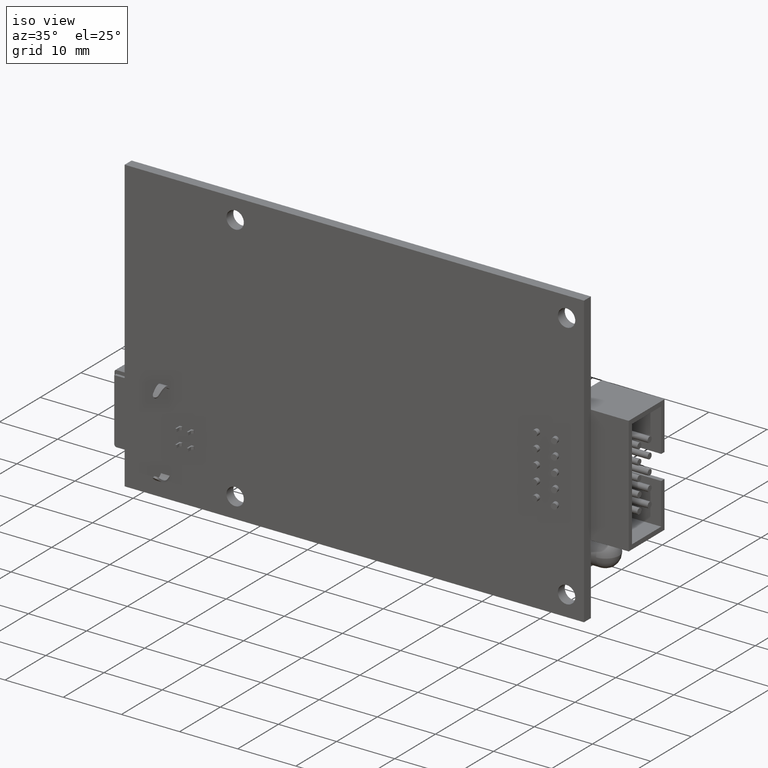
[diagram: clean part render]
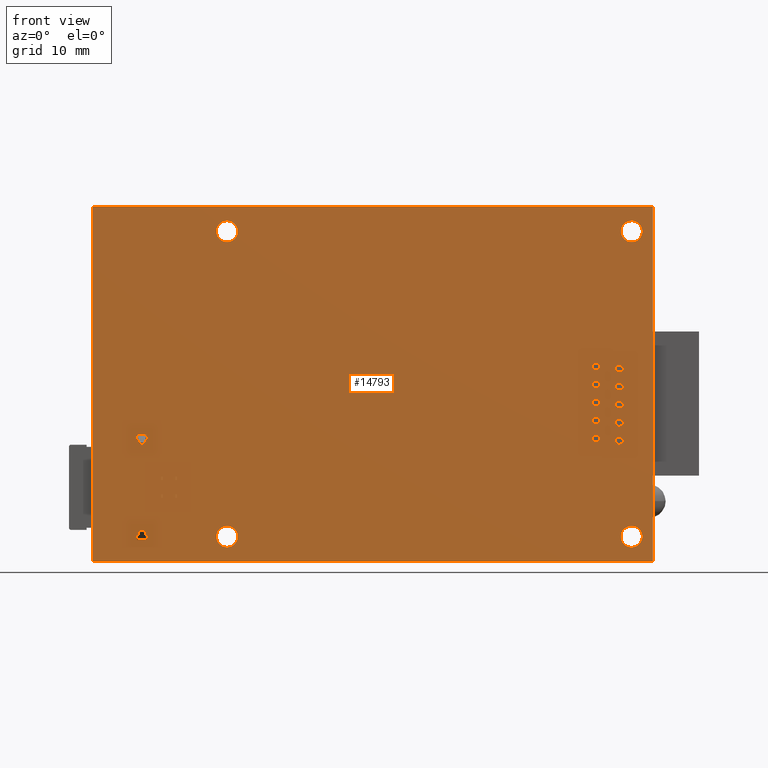
[diagram: tour spotlight — one face highlighted and labeled with its STEP entity id]
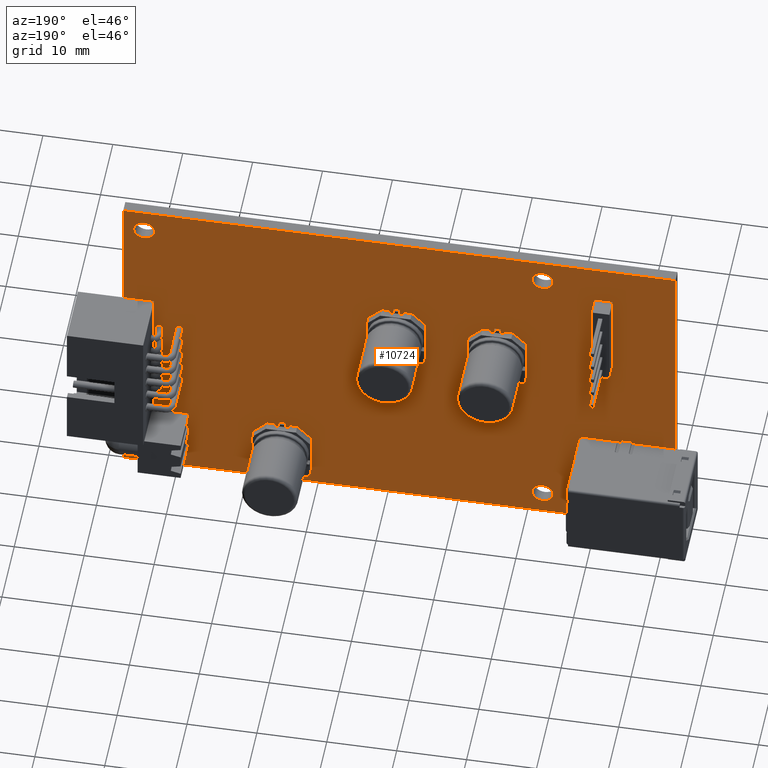
[diagram: tour spotlight — one face highlighted and labeled with its STEP entity id]
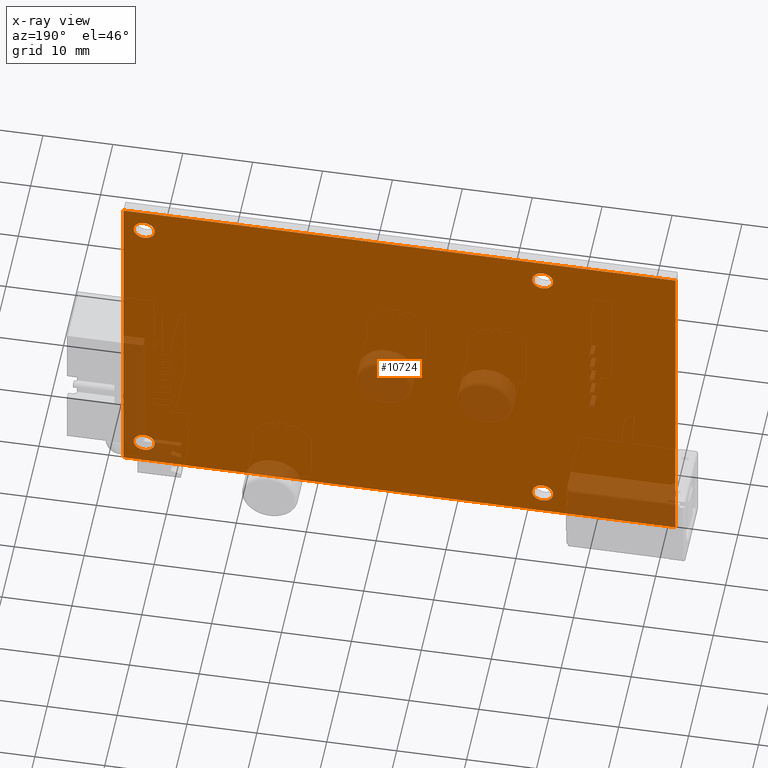
[diagram: x-ray of the same camera — body ghosted, this tour face saturated]
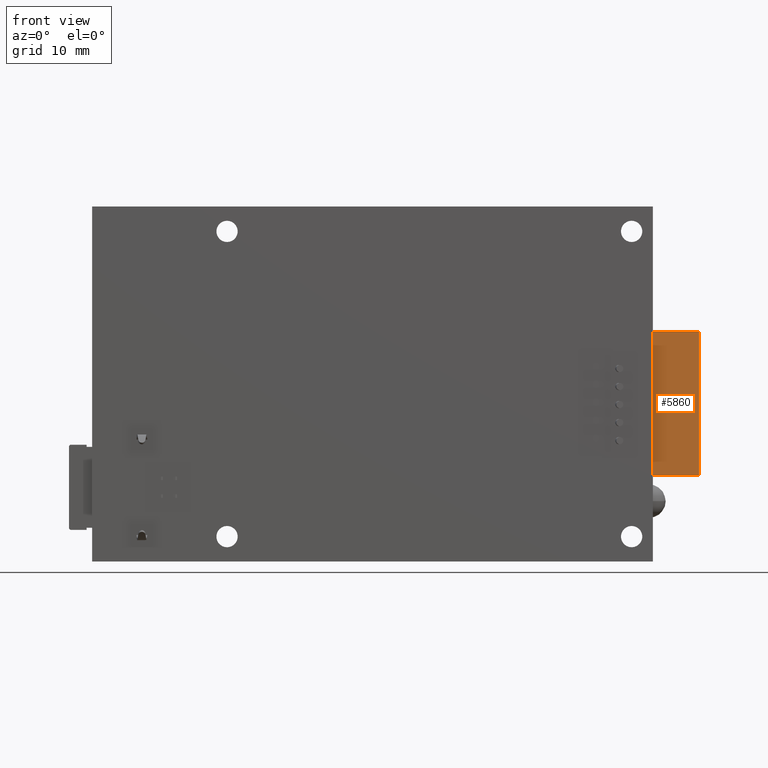
[diagram: tour spotlight — one face highlighted and labeled with its STEP entity id]
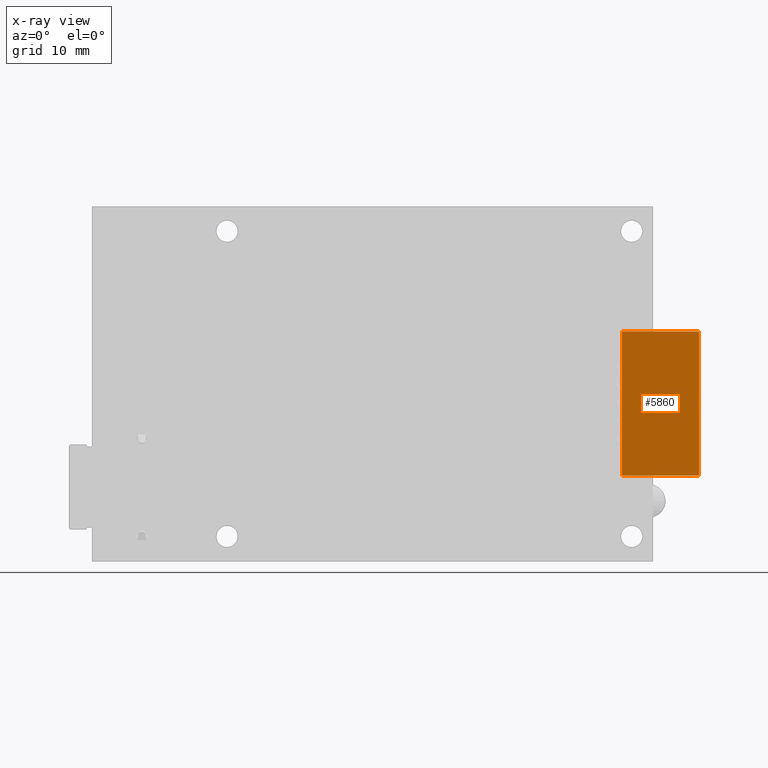
[diagram: x-ray of the same camera — body ghosted, this tour face saturated]
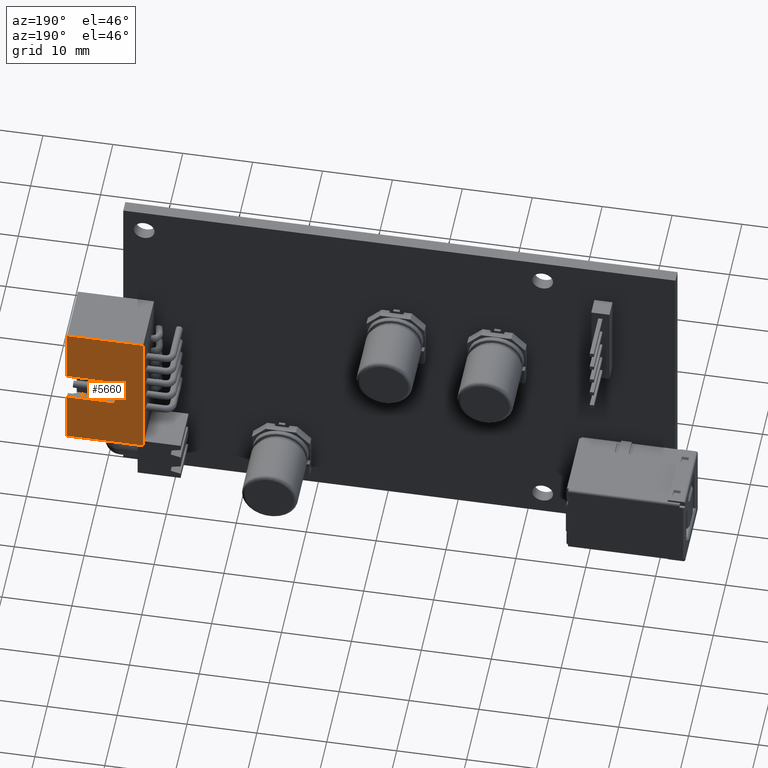
[diagram: tour spotlight — one face highlighted and labeled with its STEP entity id]
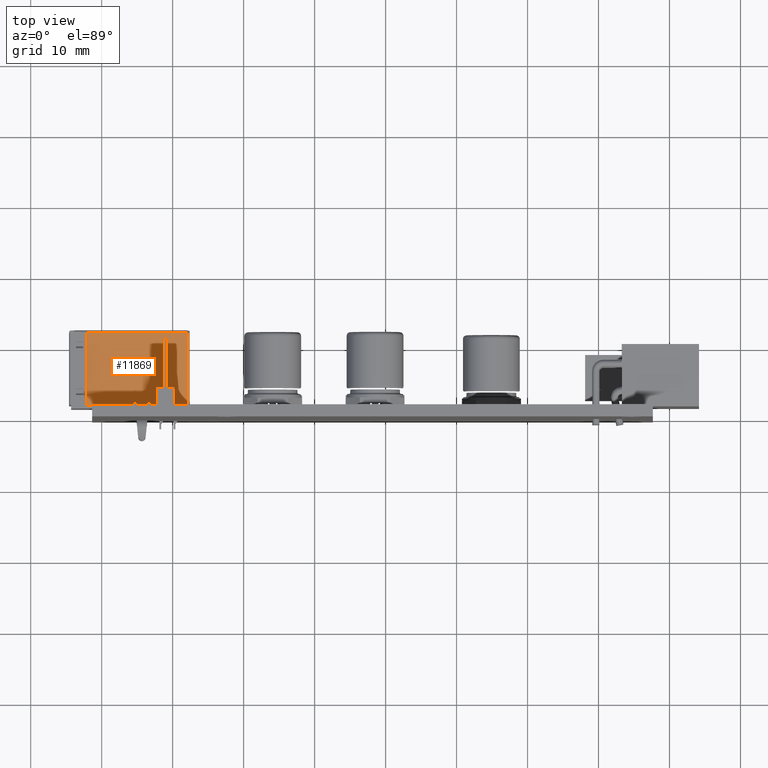
[diagram: tour spotlight — one face highlighted and labeled with its STEP entity id]
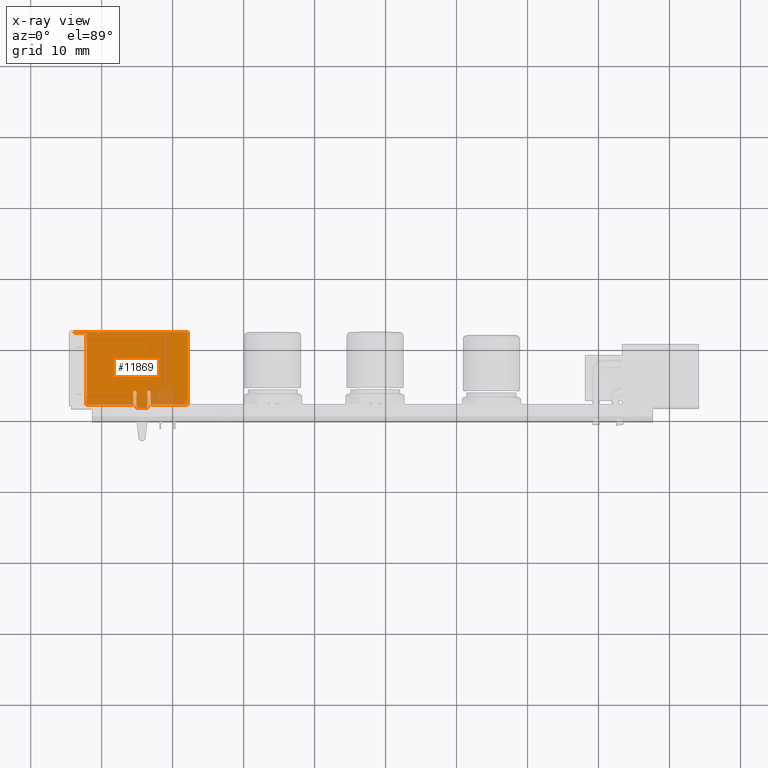
[diagram: x-ray of the same camera — body ghosted, this tour face saturated]
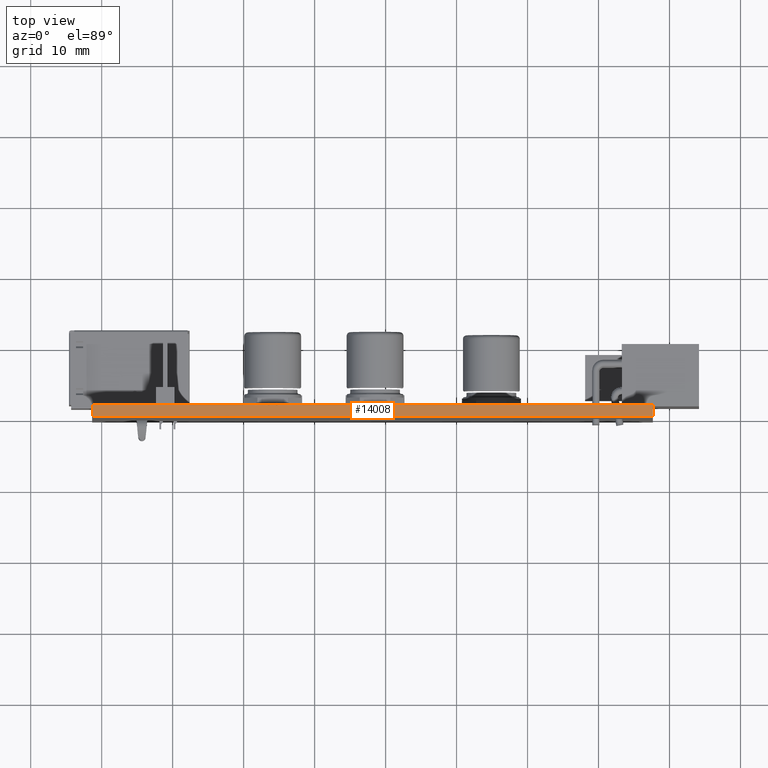
[diagram: tour spotlight — one face highlighted and labeled with its STEP entity id]
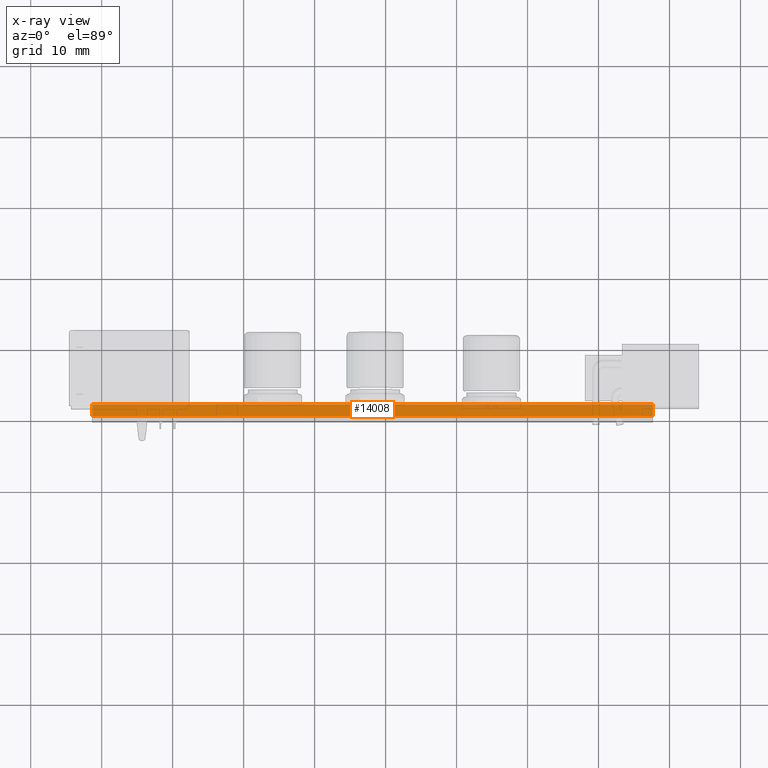
[diagram: x-ray of the same camera — body ghosted, this tour face saturated]
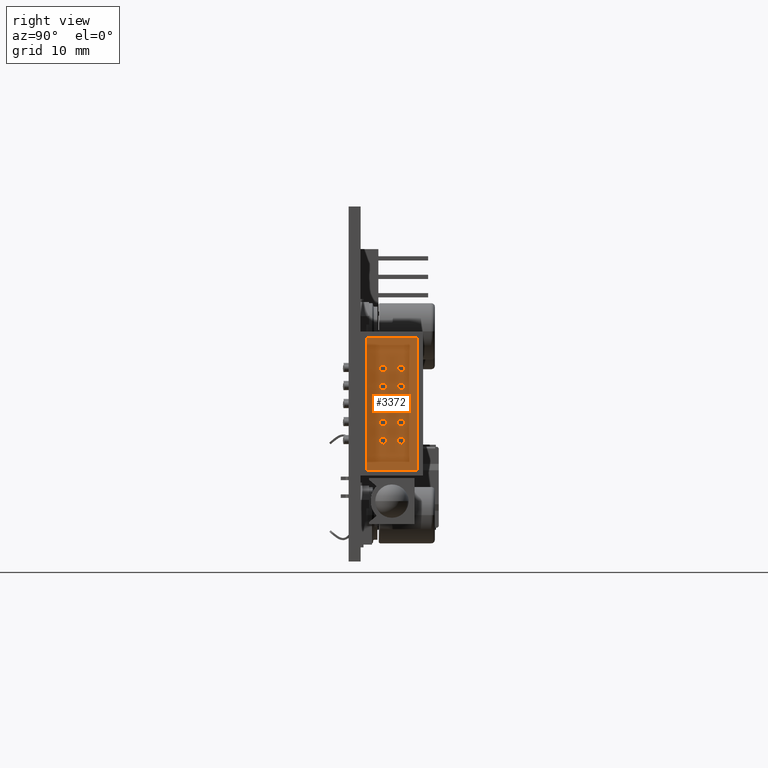
[diagram: tour spotlight — one face highlighted and labeled with its STEP entity id]
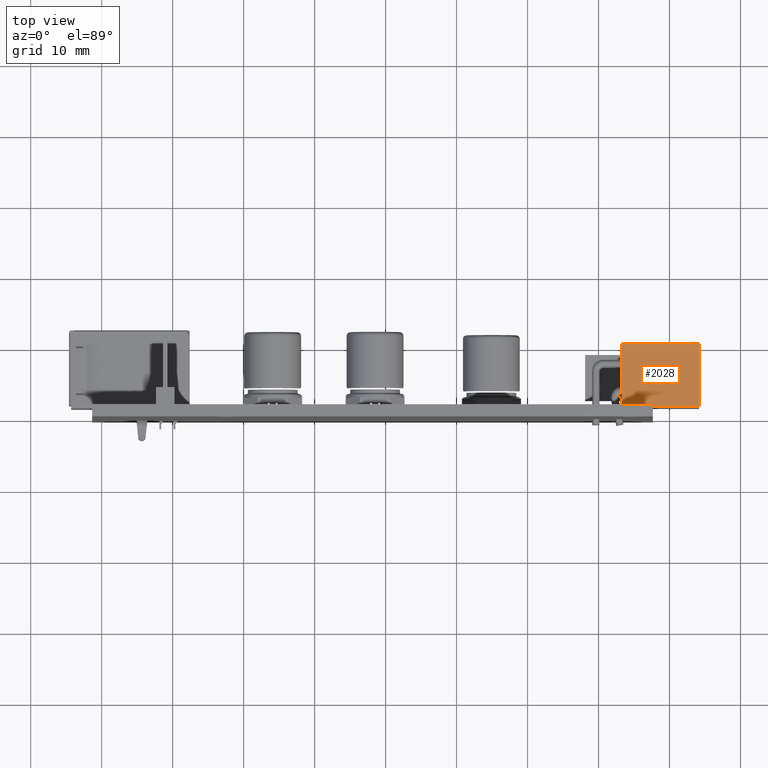
[diagram: tour spotlight — one face highlighted and labeled with its STEP entity id]
A machine part: a face-by-face anatomy tour. The part has 508 B-rep faces; the first image is the clean iso view, then the 8 largest visible faces are spotlighted one at a time (largest first), each with its STEP entity span.

Face 1 — front view, entity #14793. In plain terms, the highlighted planar face has unit normal (0, -1, 0).
Definition (entity closure, byte-faithful):
#122 = FACE_OUTER_BOUND ( 'NONE', #12413, .T. ) ;
#289 = AXIS2_PLACEMENT_3D ( 'NONE', #8817, #12568, #6281 ) ;
#292 = VERTEX_POINT ( 'NONE', #11549 ) ;
#343 = LINE ( 'NONE', #3616, #13479 ) ;
#666 = EDGE_CURVE ( 'NONE', #8092, #15972, #9610, .T. ) ;
#715 = CARTESIAN_POINT ( 'NONE',  ( -22.33675966715614100, -0.1732990699952867100, -3.500000000010449400 ) ) ;
#802 = ORIENTED_EDGE ( 'NONE', *, *, #12137, .F. ) ;
#848 = ORIENTED_EDGE ( 'NONE', *, *, #7394, .T. ) ;
#945 = CARTESIAN_POINT ( 'NONE',  ( 34.66324033284385600, -0.1732990699952867100, -48.00000000001045900 ) ) ;
#1117 = ORIENTED_EDGE ( 'NONE', *, *, #15809, .F. ) ;
#1295 = CIRCLE ( 'NONE', #7804, 1.499999999999996900 ) ;
#1521 = DIRECTION ( 'NONE',  ( -1.000000000000000000, -0.0000000000000000000, -0.0000000000000000000 ) ) ;
#1608 = VERTEX_POINT ( 'NONE', #15435 ) ;
#1856 = LINE ( 'NONE', #11051, #11198 ) ;
#1925 = FACE_BOUND ( 'NONE', #16126, .T. ) ;
#1939 = DIRECTION ( 'NONE',  ( 0.0000000000000000000, -1.000000000000000000, 0.0000000000000000000 ) ) ;
#1950 = DIRECTION ( 'NONE',  ( -0.0000000000000000000, 1.000000000000000000, -0.0000000000000000000 ) ) ;
#2244 = AXIS2_PLACEMENT_3D ( 'NONE', #10804, #1939, #4421 ) ;
#2412 = CARTESIAN_POINT ( 'NONE',  ( 37.66324033284385600, -0.1732990699952867100, -1.046038256014014700E-011 ) ) ;
#2471 = LINE ( 'NONE', #9335, #5052 ) ;
#2553 = VERTEX_POINT ( 'NONE', #2412 ) ;
#2844 = DIRECTION ( 'NONE',  ( 0.0000000000000000000, 0.0000000000000000000, -1.000000000000000000 ) ) ;
#3136 = DIRECTION ( 'NONE',  ( 0.0000000000000000000, 0.0000000000000000000, -1.000000000000000000 ) ) ;
#3616 = CARTESIAN_POINT ( 'NONE',  ( -41.33675966715614400, -0.1732990699952867100, -1.046038256014014700E-011 ) ) ;
#4197 = ORIENTED_EDGE ( 'NONE', *, *, #7700, .T. ) ;
#4381 = DIRECTION ( 'NONE',  ( 0.0000000000000000000, 0.0000000000000000000, -1.000000000000000000 ) ) ;
#4421 = DIRECTION ( 'NONE',  ( 0.0000000000000000000, -0.0000000000000000000, -1.000000000000000000 ) ) ;
#4505 = EDGE_LOOP ( 'NONE', ( #4197, #12954 ) ) ;
#5052 = VECTOR ( 'NONE', #12047, 1000.000000000000000 ) ;
#5503 = ORIENTED_EDGE ( 'NONE', *, *, #10248, .T. ) ;
#5666 = ORIENTED_EDGE ( 'NONE', *, *, #6869, .T. ) ;
#5767 = EDGE_CURVE ( 'NONE', #15924, #13166, #1295, .T. ) ;
#5792 = CARTESIAN_POINT ( 'NONE',  ( 34.66324033284387000, -0.1732990699952867100, -5.000000000010461000 ) ) ;
#5804 = CARTESIAN_POINT ( 'NONE',  ( 37.66324033284385600, -0.1732990699952867100, -1.046038256014014700E-011 ) ) ;
#5861 = EDGE_CURVE ( 'NONE', #9001, #1608, #14417, .T. ) ;
#6027 = DIRECTION ( 'NONE',  ( 0.0000000000000000000, 0.0000000000000000000, -1.000000000000000000 ) ) ;
#6213 = CARTESIAN_POINT ( 'NONE',  ( 34.66324033284387000, -0.1732990699952867100, -2.000000000010465900 ) ) ;
#6242 = CARTESIAN_POINT ( 'NONE',  ( -22.33675966715616200, -0.1732990699952867100, -45.00000000001045900 ) ) ;
#6281 = DIRECTION ( 'NONE',  ( 0.0000000000000000000, 0.0000000000000000000, -1.000000000000000000 ) ) ;
#6869 = EDGE_CURVE ( 'NONE', #1608, #9001, #11418, .T. ) ;
#6940 = EDGE_CURVE ( 'NONE', #12721, #292, #1856, .T. ) ;
#6967 = AXIS2_PLACEMENT_3D ( 'NONE', #9909, #13658, #6027 ) ;
#7204 = VERTEX_POINT ( 'NONE', #13571 ) ;
#7394 = EDGE_CURVE ( 'NONE', #15972, #8092, #9618, .T. ) ;
#7442 = CARTESIAN_POINT ( 'NONE',  ( -22.33675966715614100, -0.1732990699952867100, -5.000000000010454700 ) ) ;
#7688 = CIRCLE ( 'NONE', #8189, 1.500000000000001300 ) ;
#7700 = EDGE_CURVE ( 'NONE', #13166, #15924, #16344, .T. ) ;
#7804 = AXIS2_PLACEMENT_3D ( 'NONE', #8918, #11359, #10202 ) ;
#7885 = CARTESIAN_POINT ( 'NONE',  ( 34.66324033284387000, -0.1732990699952867100, -3.500000000010463600 ) ) ;
#7954 = EDGE_LOOP ( 'NONE', ( #12178, #848 ) ) ;
#8092 = VERTEX_POINT ( 'NONE', #8662 ) ;
#8189 = AXIS2_PLACEMENT_3D ( 'NONE', #10052, #11315, #9891 ) ;
#8505 = FACE_BOUND ( 'NONE', #7954, .T. ) ;
#8621 = ORIENTED_EDGE ( 'NONE', *, *, #5861, .T. ) ;
#8662 = CARTESIAN_POINT ( 'NONE',  ( 34.66324033284385600, -0.1732990699952867100, -45.00000000001046600 ) ) ;
#8817 = CARTESIAN_POINT ( 'NONE',  ( -22.33675966715616200, -0.1732990699952867100, -46.50000000001046600 ) ) ;
#8874 = LINE ( 'NONE', #5804, #14240 ) ;
#8918 = CARTESIAN_POINT ( 'NONE',  ( 34.66324033284387000, -0.1732990699952867100, -3.500000000010463600 ) ) ;
#9001 = VERTEX_POINT ( 'NONE', #7442 ) ;
#9019 = AXIS2_PLACEMENT_3D ( 'NONE', #715, #1950, #4381 ) ;
#9103 = ORIENTED_EDGE ( 'NONE', *, *, #6940, .F. ) ;
#9335 = CARTESIAN_POINT ( 'NONE',  ( -41.33675966715614400, -0.1732990699952867100, -1.046038256014014700E-011 ) ) ;
#9610 = CIRCLE ( 'NONE', #14171, 1.499999999999994400 ) ;
#9618 = CIRCLE ( 'NONE', #6967, 1.499999999999994400 ) ;
#9861 = ORIENTED_EDGE ( 'NONE', *, *, #14439, .F. ) ;
#9891 = DIRECTION ( 'NONE',  ( 0.0000000000000000000, 0.0000000000000000000, -1.000000000000000000 ) ) ;
#9909 = CARTESIAN_POINT ( 'NONE',  ( 34.66324033284385600, -0.1732990699952867100, -46.50000000001046600 ) ) ;
#10052 = CARTESIAN_POINT ( 'NONE',  ( -22.33675966715616200, -0.1732990699952867100, -46.50000000001046600 ) ) ;
#10202 = DIRECTION ( 'NONE',  ( 0.0000000000000000000, 0.0000000000000000000, -1.000000000000000000 ) ) ;
#10248 = EDGE_CURVE ( 'NONE', #12724, #7204, #12129, .T. ) ;
#10414 = CARTESIAN_POINT ( 'NONE',  ( -41.33675966715614400, -0.1732990699952867100, -1.046038256014014700E-011 ) ) ;
#10804 = CARTESIAN_POINT ( 'NONE',  ( -41.33675966715614400, -0.1732990699952867100, -50.00000000001046600 ) ) ;
#10895 = FACE_BOUND ( 'NONE', #4505, .T. ) ;
#11051 = CARTESIAN_POINT ( 'NONE',  ( -41.33675966715614400, -0.1732990699952867100, -50.00000000001046600 ) ) ;
#11198 = VECTOR ( 'NONE', #1521, 1000.000000000000000 ) ;
#11315 = DIRECTION ( 'NONE',  ( -0.0000000000000000000, 1.000000000000000000, -0.0000000000000000000 ) ) ;
#11359 = DIRECTION ( 'NONE',  ( -0.0000000000000000000, 1.000000000000000000, -0.0000000000000000000 ) ) ;
#11367 = EDGE_LOOP ( 'NONE', ( #5666, #8621 ) ) ;
#11397 = DIRECTION ( 'NONE',  ( -0.0000000000000000000, -0.0000000000000000000, 1.000000000000000000 ) ) ;
#11418 = CIRCLE ( 'NONE', #9019, 1.500000000000004000 ) ;
#11547 = EDGE_CURVE ( 'NONE', #7204, #12724, #7688, .T. ) ;
#11549 = CARTESIAN_POINT ( 'NONE',  ( -41.33675966715614400, -0.1732990699952867100, -50.00000000001046600 ) ) ;
#11706 = DIRECTION ( 'NONE',  ( -0.0000000000000000000, 1.000000000000000000, -0.0000000000000000000 ) ) ;
#11984 = ORIENTED_EDGE ( 'NONE', *, *, #11547, .T. ) ;
#12047 = DIRECTION ( 'NONE',  ( 1.000000000000000000, 0.0000000000000000000, 0.0000000000000000000 ) ) ;
#12129 = CIRCLE ( 'NONE', #289, 1.500000000000001300 ) ;
#12137 = EDGE_CURVE ( 'NONE', #15120, #2553, #2471, .T. ) ;
#12178 = ORIENTED_EDGE ( 'NONE', *, *, #666, .T. ) ;
#12195 = AXIS2_PLACEMENT_3D ( 'NONE', #16293, #15125, #15177 ) ;
#12413 = EDGE_LOOP ( 'NONE', ( #9861, #9103, #1117, #802 ) ) ;
#12568 = DIRECTION ( 'NONE',  ( -0.0000000000000000000, 1.000000000000000000, -0.0000000000000000000 ) ) ;
#12615 = AXIS2_PLACEMENT_3D ( 'NONE', #7885, #11706, #15372 ) ;
#12721 = VERTEX_POINT ( 'NONE', #14962 ) ;
#12724 = VERTEX_POINT ( 'NONE', #6242 ) ;
#12954 = ORIENTED_EDGE ( 'NONE', *, *, #5767, .T. ) ;
#13166 = VERTEX_POINT ( 'NONE', #6213 ) ;
#13479 = VECTOR ( 'NONE', #11397, 1000.000000000000000 ) ;
#13571 = CARTESIAN_POINT ( 'NONE',  ( -22.33675966715616200, -0.1732990699952867100, -48.00000000001046600 ) ) ;
#13658 = DIRECTION ( 'NONE',  ( -0.0000000000000000000, 1.000000000000000000, -0.0000000000000000000 ) ) ;
#13661 = FACE_BOUND ( 'NONE', #11367, .T. ) ;
#14171 = AXIS2_PLACEMENT_3D ( 'NONE', #15528, #14314, #2844 ) ;
#14240 = VECTOR ( 'NONE', #3136, 1000.000000000000000 ) ;
#14314 = DIRECTION ( 'NONE',  ( -0.0000000000000000000, 1.000000000000000000, -0.0000000000000000000 ) ) ;
#14417 = CIRCLE ( 'NONE', #12195, 1.500000000000004000 ) ;
#14439 = EDGE_CURVE ( 'NONE', #292, #15120, #343, .T. ) ;
#14793 = ADVANCED_FACE ( 'NONE', ( #13661, #1925, #10895, #8505, #122 ), #15670, .T. ) ;
#14962 = CARTESIAN_POINT ( 'NONE',  ( 37.66324033284385600, -0.1732990699952867100, -50.00000000001046600 ) ) ;
#15120 = VERTEX_POINT ( 'NONE', #10414 ) ;
#15125 = DIRECTION ( 'NONE',  ( -0.0000000000000000000, 1.000000000000000000, -0.0000000000000000000 ) ) ;
#15177 = DIRECTION ( 'NONE',  ( 0.0000000000000000000, 0.0000000000000000000, -1.000000000000000000 ) ) ;
#15372 = DIRECTION ( 'NONE',  ( 0.0000000000000000000, 0.0000000000000000000, -1.000000000000000000 ) ) ;
#15435 = CARTESIAN_POINT ( 'NONE',  ( -22.33675966715614100, -0.1732990699952867100, -2.000000000010445400 ) ) ;
#15528 = CARTESIAN_POINT ( 'NONE',  ( 34.66324033284385600, -0.1732990699952867100, -46.50000000001046600 ) ) ;
#15670 = PLANE ( 'NONE',  #2244 ) ;
#15809 = EDGE_CURVE ( 'NONE', #2553, #12721, #8874, .T. ) ;
#15924 = VERTEX_POINT ( 'NONE', #5792 ) ;
#15972 = VERTEX_POINT ( 'NONE', #945 ) ;
#16126 = EDGE_LOOP ( 'NONE', ( #5503, #11984 ) ) ;
#16293 = CARTESIAN_POINT ( 'NONE',  ( -22.33675966715614100, -0.1732990699952867100, -3.500000000010449400 ) ) ;
#16344 = CIRCLE ( 'NONE', #12615, 1.499999999999996900 ) ;

Face 2 — auxiliary view, entity #10724. An x-ray twin of the same camera follows (body ghosted, this face saturated) — the face is partly hidden behind the body. In plain terms, the highlighted planar face has unit normal (0, -1, 0).
Definition (entity closure, byte-faithful):
#9 = EDGE_LOOP ( 'NONE', ( #1772, #8775 ) ) ;
#34 = CARTESIAN_POINT ( 'NONE',  ( 37.66324033284385600, 1.526700930004713200, -1.046038256014014700E-011 ) ) ;
#43 = EDGE_LOOP ( 'NONE', ( #855, #14407 ) ) ;
#107 = CARTESIAN_POINT ( 'NONE',  ( 37.66324033284385600, 1.526700930004713200, -50.00000000001046600 ) ) ;
#265 = VERTEX_POINT ( 'NONE', #11377 ) ;
#554 = DIRECTION ( 'NONE',  ( 0.0000000000000000000, 1.000000000000000000, 0.0000000000000000000 ) ) ;
#663 = DIRECTION ( 'NONE',  ( 0.0000000000000000000, 0.0000000000000000000, 1.000000000000000000 ) ) ;
#855 = ORIENTED_EDGE ( 'NONE', *, *, #14668, .F. ) ;
#1123 = CIRCLE ( 'NONE', #3726, 1.499999999999996900 ) ;
#1155 = CARTESIAN_POINT ( 'NONE',  ( 34.66324033284385600, 1.526700930004713200, -45.00000000001046600 ) ) ;
#1437 = CARTESIAN_POINT ( 'NONE',  ( -41.33675966715614400, 1.526700930004713200, -1.046038256014014700E-011 ) ) ;
#1550 = ORIENTED_EDGE ( 'NONE', *, *, #1601, .T. ) ;
#1601 = EDGE_CURVE ( 'NONE', #13498, #14114, #2994, .T. ) ;
#1656 = CARTESIAN_POINT ( 'NONE',  ( 37.66324033284385600, 1.526700930004713200, -1.046038256014014700E-011 ) ) ;
#1716 = VERTEX_POINT ( 'NONE', #8275 ) ;
#1772 = ORIENTED_EDGE ( 'NONE', *, *, #12421, .F. ) ;
#1860 = DIRECTION ( 'NONE',  ( 0.0000000000000000000, 0.0000000000000000000, 1.000000000000000000 ) ) ;
#2133 = ORIENTED_EDGE ( 'NONE', *, *, #13539, .T. ) ;
#2232 = ORIENTED_EDGE ( 'NONE', *, *, #7057, .F. ) ;
#2328 = FACE_BOUND ( 'NONE', #9, .T. ) ;
#2337 = AXIS2_PLACEMENT_3D ( 'NONE', #4943, #6261, #11462 ) ;
#2675 = CARTESIAN_POINT ( 'NONE',  ( -22.33675966715616200, 1.526700930004713200, -45.00000000001045900 ) ) ;
#2955 = VERTEX_POINT ( 'NONE', #2675 ) ;
#2994 = LINE ( 'NONE', #1437, #12180 ) ;
#3121 = CARTESIAN_POINT ( 'NONE',  ( -22.33675966715616200, 1.526700930004713200, -46.50000000001046600 ) ) ;
#3182 = VECTOR ( 'NONE', #9028, 1000.000000000000000 ) ;
#3313 = FACE_OUTER_BOUND ( 'NONE', #12402, .T. ) ;
#3402 = ORIENTED_EDGE ( 'NONE', *, *, #13560, .F. ) ;
#3506 = DIRECTION ( 'NONE',  ( 0.0000000000000000000, 1.000000000000000000, 0.0000000000000000000 ) ) ;
#3652 = EDGE_LOOP ( 'NONE', ( #3402, #13010 ) ) ;
#3653 = VERTEX_POINT ( 'NONE', #10894 ) ;
#3726 = AXIS2_PLACEMENT_3D ( 'NONE', #11724, #6734, #15617 ) ;
#3877 = CARTESIAN_POINT ( 'NONE',  ( -41.33675966715614400, 1.526700930004713200, -1.046038256014014700E-011 ) ) ;
#4002 = AXIS2_PLACEMENT_3D ( 'NONE', #9355, #11811, #7933 ) ;
#4010 = VERTEX_POINT ( 'NONE', #16129 ) ;
#4029 = LINE ( 'NONE', #3877, #3182 ) ;
#4209 = ORIENTED_EDGE ( 'NONE', *, *, #13365, .T. ) ;
#4358 = ORIENTED_EDGE ( 'NONE', *, *, #10106, .F. ) ;
#4689 = VERTEX_POINT ( 'NONE', #107 ) ;
#4943 = CARTESIAN_POINT ( 'NONE',  ( 34.66324033284385600, 1.526700930004713200, -46.50000000001046600 ) ) ;
#5321 = CIRCLE ( 'NONE', #13746, 1.500000000000001300 ) ;
#5403 = CIRCLE ( 'NONE', #8467, 1.500000000000004000 ) ;
#5618 = DIRECTION ( 'NONE',  ( 0.0000000000000000000, 0.0000000000000000000, 1.000000000000000000 ) ) ;
#6261 = DIRECTION ( 'NONE',  ( 0.0000000000000000000, 1.000000000000000000, 0.0000000000000000000 ) ) ;
#6545 = CIRCLE ( 'NONE', #10641, 1.500000000000004000 ) ;
#6725 = FACE_BOUND ( 'NONE', #43, .T. ) ;
#6734 = DIRECTION ( 'NONE',  ( 0.0000000000000000000, 1.000000000000000000, 0.0000000000000000000 ) ) ;
#7048 = CIRCLE ( 'NONE', #9749, 1.499999999999996900 ) ;
#7057 = EDGE_CURVE ( 'NONE', #3653, #14752, #5403, .T. ) ;
#7933 = DIRECTION ( 'NONE',  ( 0.0000000000000000000, -0.0000000000000000000, -1.000000000000000000 ) ) ;
#7989 = PLANE ( 'NONE',  #4002 ) ;
#8086 = CARTESIAN_POINT ( 'NONE',  ( -22.33675966715616200, 1.526700930004713200, -46.50000000001046600 ) ) ;
#8110 = LINE ( 'NONE', #34, #15662 ) ;
#8177 = ORIENTED_EDGE ( 'NONE', *, *, #10711, .T. ) ;
#8202 = DIRECTION ( 'NONE',  ( 0.0000000000000000000, 1.000000000000000000, 0.0000000000000000000 ) ) ;
#8275 = CARTESIAN_POINT ( 'NONE',  ( 34.66324033284387000, 1.526700930004713200, -2.000000000010466300 ) ) ;
#8300 = CARTESIAN_POINT ( 'NONE',  ( -22.33675966715614100, 1.526700930004713200, -3.500000000010449400 ) ) ;
#8467 = AXIS2_PLACEMENT_3D ( 'NONE', #8300, #554, #663 ) ;
#8775 = ORIENTED_EDGE ( 'NONE', *, *, #13769, .F. ) ;
#9028 = DIRECTION ( 'NONE',  ( 1.000000000000000000, 0.0000000000000000000, 0.0000000000000000000 ) ) ;
#9150 = FACE_BOUND ( 'NONE', #3652, .T. ) ;
#9350 = DIRECTION ( 'NONE',  ( 0.0000000000000000000, 1.000000000000000000, 0.0000000000000000000 ) ) ;
#9355 = CARTESIAN_POINT ( 'NONE',  ( -41.33675966715614400, 1.526700930004713200, -50.00000000001046600 ) ) ;
#9749 = AXIS2_PLACEMENT_3D ( 'NONE', #12537, #3506, #9944 ) ;
#9757 = DIRECTION ( 'NONE',  ( 0.0000000000000000000, 1.000000000000000000, 0.0000000000000000000 ) ) ;
#9944 = DIRECTION ( 'NONE',  ( 0.0000000000000000000, 0.0000000000000000000, 1.000000000000000000 ) ) ;
#10015 = DIRECTION ( 'NONE',  ( -1.000000000000000000, -0.0000000000000000000, -0.0000000000000000000 ) ) ;
#10071 = CIRCLE ( 'NONE', #14052, 1.500000000000001300 ) ;
#10106 = EDGE_CURVE ( 'NONE', #14752, #3653, #6545, .T. ) ;
#10641 = AXIS2_PLACEMENT_3D ( 'NONE', #12259, #9757, #16188 ) ;
#10711 = EDGE_CURVE ( 'NONE', #13996, #4689, #8110, .T. ) ;
#10724 = ADVANCED_FACE ( 'NONE', ( #12684, #2328, #6725, #9150, #3313 ), #7989, .F. ) ;
#10832 = DIRECTION ( 'NONE',  ( 0.0000000000000000000, 1.000000000000000000, 0.0000000000000000000 ) ) ;
#10894 = CARTESIAN_POINT ( 'NONE',  ( -22.33675966715614100, 1.526700930004713200, -2.000000000010445900 ) ) ;
#11335 = CARTESIAN_POINT ( 'NONE',  ( -41.33675966715614400, 1.526700930004713200, -50.00000000001046600 ) ) ;
#11377 = CARTESIAN_POINT ( 'NONE',  ( -22.33675966715616200, 1.526700930004713200, -48.00000000001046600 ) ) ;
#11462 = DIRECTION ( 'NONE',  ( 0.0000000000000000000, 0.0000000000000000000, 1.000000000000000000 ) ) ;
#11704 = DIRECTION ( 'NONE',  ( -0.0000000000000000000, -0.0000000000000000000, 1.000000000000000000 ) ) ;
#11724 = CARTESIAN_POINT ( 'NONE',  ( 34.66324033284387000, 1.526700930004713200, -3.500000000010463600 ) ) ;
#11761 = EDGE_LOOP ( 'NONE', ( #2232, #4358 ) ) ;
#11811 = DIRECTION ( 'NONE',  ( 0.0000000000000000000, -1.000000000000000000, 0.0000000000000000000 ) ) ;
#11814 = CARTESIAN_POINT ( 'NONE',  ( -41.33675966715614400, 1.526700930004713200, -50.00000000001046600 ) ) ;
#11901 = CARTESIAN_POINT ( 'NONE',  ( 34.66324033284385600, 1.526700930004713200, -48.00000000001045900 ) ) ;
#11938 = CIRCLE ( 'NONE', #2337, 1.499999999999994400 ) ;
#12122 = CARTESIAN_POINT ( 'NONE',  ( -41.33675966715614400, 1.526700930004713200, -1.046038256014014700E-011 ) ) ;
#12180 = VECTOR ( 'NONE', #11704, 1000.000000000000000 ) ;
#12259 = CARTESIAN_POINT ( 'NONE',  ( -22.33675966715614100, 1.526700930004713200, -3.500000000010449400 ) ) ;
#12402 = EDGE_LOOP ( 'NONE', ( #1550, #4209, #8177, #2133 ) ) ;
#12421 = EDGE_CURVE ( 'NONE', #2955, #265, #10071, .T. ) ;
#12460 = VERTEX_POINT ( 'NONE', #11901 ) ;
#12537 = CARTESIAN_POINT ( 'NONE',  ( 34.66324033284387000, 1.526700930004713200, -3.500000000010463600 ) ) ;
#12653 = CIRCLE ( 'NONE', #16113, 1.499999999999994400 ) ;
#12684 = FACE_BOUND ( 'NONE', #11761, .T. ) ;
#12880 = CARTESIAN_POINT ( 'NONE',  ( 34.66324033284385600, 1.526700930004713200, -46.50000000001046600 ) ) ;
#13010 = ORIENTED_EDGE ( 'NONE', *, *, #15440, .F. ) ;
#13365 = EDGE_CURVE ( 'NONE', #14114, #13996, #4029, .T. ) ;
#13498 = VERTEX_POINT ( 'NONE', #11814 ) ;
#13539 = EDGE_CURVE ( 'NONE', #4689, #13498, #16488, .T. ) ;
#13560 = EDGE_CURVE ( 'NONE', #14826, #12460, #11938, .T. ) ;
#13746 = AXIS2_PLACEMENT_3D ( 'NONE', #8086, #9350, #5618 ) ;
#13769 = EDGE_CURVE ( 'NONE', #265, #2955, #5321, .T. ) ;
#13996 = VERTEX_POINT ( 'NONE', #1656 ) ;
#14052 = AXIS2_PLACEMENT_3D ( 'NONE', #3121, #10832, #14580 ) ;
#14114 = VERTEX_POINT ( 'NONE', #12122 ) ;
#14165 = DIRECTION ( 'NONE',  ( 0.0000000000000000000, 0.0000000000000000000, -1.000000000000000000 ) ) ;
#14407 = ORIENTED_EDGE ( 'NONE', *, *, #15968, .F. ) ;
#14580 = DIRECTION ( 'NONE',  ( 0.0000000000000000000, 0.0000000000000000000, 1.000000000000000000 ) ) ;
#14668 = EDGE_CURVE ( 'NONE', #1716, #4010, #1123, .T. ) ;
#14752 = VERTEX_POINT ( 'NONE', #15896 ) ;
#14826 = VERTEX_POINT ( 'NONE', #1155 ) ;
#15440 = EDGE_CURVE ( 'NONE', #12460, #14826, #12653, .T. ) ;
#15617 = DIRECTION ( 'NONE',  ( 0.0000000000000000000, 0.0000000000000000000, 1.000000000000000000 ) ) ;
#15662 = VECTOR ( 'NONE', #14165, 1000.000000000000000 ) ;
#15896 = CARTESIAN_POINT ( 'NONE',  ( -22.33675966715614100, 1.526700930004713200, -5.000000000010454700 ) ) ;
#15968 = EDGE_CURVE ( 'NONE', #4010, #1716, #7048, .T. ) ;
#16113 = AXIS2_PLACEMENT_3D ( 'NONE', #12880, #8202, #1860 ) ;
#16129 = CARTESIAN_POINT ( 'NONE',  ( 34.66324033284387000, 1.526700930004713200, -5.000000000010461000 ) ) ;
#16188 = DIRECTION ( 'NONE',  ( 0.0000000000000000000, 0.0000000000000000000, 1.000000000000000000 ) ) ;
#16276 = VECTOR ( 'NONE', #10015, 1000.000000000000000 ) ;
#16488 = LINE ( 'NONE', #11335, #16276 ) ;

Face 3 — front view, entity #5860. An x-ray twin of the same camera follows (body ghosted, this face saturated) — the face is partly hidden behind the body. In plain terms, the highlighted planar face has unit normal (-0, 1, 0).
Definition (entity closure, byte-faithful):
#350 = LINE ( 'NONE', #7315, #12116 ) ;
#847 = LINE ( 'NONE', #10325, #12033 ) ;
#1064 = CARTESIAN_POINT ( 'NONE',  ( 44.16324033284385600, 1.526700930004712300, -17.60000000001046100 ) ) ;
#1410 = CARTESIAN_POINT ( 'NONE',  ( 44.16324033284385600, 1.526700930004712300, -17.60000000001046100 ) ) ;
#2085 = VECTOR ( 'NONE', #2129, 1000.000000000000000 ) ;
#2129 = DIRECTION ( 'NONE',  ( 0.0000000000000000000, 0.0000000000000000000, -1.000000000000000000 ) ) ;
#2238 = CARTESIAN_POINT ( 'NONE',  ( 44.16324033284385600, 1.526700930004712300, -17.60000000001046100 ) ) ;
#2433 = PLANE ( 'NONE',  #3406 ) ;
#2684 = EDGE_CURVE ( 'NONE', #7024, #10427, #7751, .T. ) ;
#2764 = CARTESIAN_POINT ( 'NONE',  ( 33.26324033284385700, 1.526700930004712300, -37.90000000001046500 ) ) ;
#3077 = DIRECTION ( 'NONE',  ( -1.000000000000000000, 0.0000000000000000000, 0.0000000000000000000 ) ) ;
#3406 = AXIS2_PLACEMENT_3D ( 'NONE', #1064, #12476, #3667 ) ;
#3407 = ORIENTED_EDGE ( 'NONE', *, *, #10806, .T. ) ;
#3667 = DIRECTION ( 'NONE',  ( 1.000000000000000000, 0.0000000000000000000, 0.0000000000000000000 ) ) ;
#5228 = CARTESIAN_POINT ( 'NONE',  ( 33.26324033284385700, 1.526700930004712300, -17.60000000001046100 ) ) ;
#5517 = CARTESIAN_POINT ( 'NONE',  ( 44.16324033284385600, 1.526700930004712300, -37.90000000001046500 ) ) ;
#5860 = ADVANCED_FACE ( 'NONE', ( #6676 ), #2433, .F. ) ;
#6676 = FACE_OUTER_BOUND ( 'NONE', #12343, .T. ) ;
#7024 = VERTEX_POINT ( 'NONE', #10544 ) ;
#7145 = VECTOR ( 'NONE', #3077, 1000.000000000000000 ) ;
#7315 = CARTESIAN_POINT ( 'NONE',  ( 44.16324033284385600, 1.526700930004712300, -17.60000000001046100 ) ) ;
#7751 = LINE ( 'NONE', #5517, #7145 ) ;
#8247 = VERTEX_POINT ( 'NONE', #5228 ) ;
#8396 = ORIENTED_EDGE ( 'NONE', *, *, #11887, .F. ) ;
#9780 = DIRECTION ( 'NONE',  ( -1.000000000000000000, 0.0000000000000000000, 0.0000000000000000000 ) ) ;
#10325 = CARTESIAN_POINT ( 'NONE',  ( 33.26324033284385700, 1.526700930004712300, -17.60000000001046100 ) ) ;
#10427 = VERTEX_POINT ( 'NONE', #2764 ) ;
#10544 = CARTESIAN_POINT ( 'NONE',  ( 44.16324033284385600, 1.526700930004712300, -37.90000000001046500 ) ) ;
#10806 = EDGE_CURVE ( 'NONE', #12862, #8247, #350, .T. ) ;
#11887 = EDGE_CURVE ( 'NONE', #12862, #7024, #12255, .T. ) ;
#12033 = VECTOR ( 'NONE', #12641, 1000.000000000000000 ) ;
#12116 = VECTOR ( 'NONE', #9780, 1000.000000000000000 ) ;
#12255 = LINE ( 'NONE', #2238, #2085 ) ;
#12343 = EDGE_LOOP ( 'NONE', ( #14012, #12513, #8396, #3407 ) ) ;
#12476 = DIRECTION ( 'NONE',  ( -0.0000000000000000000, 1.000000000000000000, 0.0000000000000000000 ) ) ;
#12513 = ORIENTED_EDGE ( 'NONE', *, *, #2684, .F. ) ;
#12641 = DIRECTION ( 'NONE',  ( 0.0000000000000000000, 0.0000000000000000000, -1.000000000000000000 ) ) ;
#12862 = VERTEX_POINT ( 'NONE', #1410 ) ;
#12909 = EDGE_CURVE ( 'NONE', #8247, #10427, #847, .T. ) ;
#14012 = ORIENTED_EDGE ( 'NONE', *, *, #12909, .T. ) ;

Face 4 — auxiliary view, entity #5660. In plain terms, the highlighted planar face has unit normal (0, -1, 0).
Definition (entity closure, byte-faithful):
#194 = LINE ( 'NONE', #11176, #11134 ) ;
#279 = VECTOR ( 'NONE', #3104, 1000.000000000000000 ) ;
#1066 = CARTESIAN_POINT ( 'NONE',  ( 37.37324033284384900, 10.32670093000471400, -30.00500000001046500 ) ) ;
#1292 = CARTESIAN_POINT ( 'NONE',  ( 44.16324033284385600, 10.32670093000471400, -17.60000000001046100 ) ) ;
#1305 = VERTEX_POINT ( 'NONE', #13652 ) ;
#1339 = ORIENTED_EDGE ( 'NONE', *, *, #8664, .F. ) ;
#1525 = LINE ( 'NONE', #1066, #8707 ) ;
#2115 = DIRECTION ( 'NONE',  ( 0.0000000000000000000, 0.0000000000000000000, 1.000000000000000000 ) ) ;
#2307 = LINE ( 'NONE', #12267, #13276 ) ;
#2323 = EDGE_CURVE ( 'NONE', #1305, #8957, #194, .T. ) ;
#2669 = AXIS2_PLACEMENT_3D ( 'NONE', #4753, #15001, #8700 ) ;
#2777 = ORIENTED_EDGE ( 'NONE', *, *, #13037, .T. ) ;
#2940 = CARTESIAN_POINT ( 'NONE',  ( 37.37324033284384900, 10.32670093000471400, -25.79500000001046100 ) ) ;
#3050 = CARTESIAN_POINT ( 'NONE',  ( 44.16324033284385600, 10.32670093000471400, -37.90000000001046500 ) ) ;
#3104 = DIRECTION ( 'NONE',  ( -1.000000000000000000, 0.0000000000000000000, 0.0000000000000000000 ) ) ;
#3223 = CARTESIAN_POINT ( 'NONE',  ( 44.16324033284385600, 10.32670093000471400, -25.79500000001046100 ) ) ;
#3442 = VERTEX_POINT ( 'NONE', #10244 ) ;
#4166 = ORIENTED_EDGE ( 'NONE', *, *, #6222, .F. ) ;
#4753 = CARTESIAN_POINT ( 'NONE',  ( 44.16324033284385600, 10.32670093000471400, -17.60000000001046100 ) ) ;
#5344 = CARTESIAN_POINT ( 'NONE',  ( 44.16324033284385600, 10.32670093000471400, -17.60000000001046100 ) ) ;
#5660 = ADVANCED_FACE ( 'NONE', ( #10261 ), #5876, .F. ) ;
#5842 = VECTOR ( 'NONE', #15683, 1000.000000000000000 ) ;
#5876 = PLANE ( 'NONE',  #2669 ) ;
#5947 = CARTESIAN_POINT ( 'NONE',  ( 44.16324033284385600, 10.32670093000471400, -37.90000000001046500 ) ) ;
#6002 = DIRECTION ( 'NONE',  ( -1.000000000000000000, 0.0000000000000000000, 0.0000000000000000000 ) ) ;
#6222 = EDGE_CURVE ( 'NONE', #8069, #9620, #10457, .T. ) ;
#7360 = ORIENTED_EDGE ( 'NONE', *, *, #11357, .F. ) ;
#8069 = VERTEX_POINT ( 'NONE', #5947 ) ;
#8664 = EDGE_CURVE ( 'NONE', #10360, #8957, #13345, .T. ) ;
#8700 = DIRECTION ( 'NONE',  ( -1.000000000000000000, 0.0000000000000000000, 0.0000000000000000000 ) ) ;
#8707 = VECTOR ( 'NONE', #6002, 1000.000000000000000 ) ;
#8957 = VERTEX_POINT ( 'NONE', #13618 ) ;
#9279 = VECTOR ( 'NONE', #11635, 1000.000000000000000 ) ;
#9330 = DIRECTION ( 'NONE',  ( -1.000000000000000000, 0.0000000000000000000, 0.0000000000000000000 ) ) ;
#9620 = VERTEX_POINT ( 'NONE', #14219 ) ;
#9977 = VECTOR ( 'NONE', #9330, 1000.000000000000000 ) ;
#10184 = EDGE_LOOP ( 'NONE', ( #7360, #15970, #4166, #2777, #11417, #1339, #12740, #15931 ) ) ;
#10225 = VERTEX_POINT ( 'NONE', #10987 ) ;
#10244 = CARTESIAN_POINT ( 'NONE',  ( 37.37324033284384900, 10.32670093000471400, -30.00500000001046500 ) ) ;
#10261 = FACE_OUTER_BOUND ( 'NONE', #10184, .T. ) ;
#10360 = VERTEX_POINT ( 'NONE', #1292 ) ;
#10392 = CARTESIAN_POINT ( 'NONE',  ( 44.16324033284385600, 10.32670093000471400, -17.60000000001046100 ) ) ;
#10457 = LINE ( 'NONE', #10392, #9279 ) ;
#10509 = LINE ( 'NONE', #5344, #13287 ) ;
#10611 = DIRECTION ( 'NONE',  ( 0.0000000000000000000, 0.0000000000000000000, 1.000000000000000000 ) ) ;
#10987 = CARTESIAN_POINT ( 'NONE',  ( 37.37324033284384900, 10.32670093000471400, -25.79500000001046100 ) ) ;
#11134 = VECTOR ( 'NONE', #12553, 1000.000000000000000 ) ;
#11176 = CARTESIAN_POINT ( 'NONE',  ( 33.26324033284385700, 10.32670093000471400, -17.60000000001046100 ) ) ;
#11247 = LINE ( 'NONE', #2940, #5842 ) ;
#11357 = EDGE_CURVE ( 'NONE', #3442, #10225, #2307, .T. ) ;
#11417 = ORIENTED_EDGE ( 'NONE', *, *, #2323, .T. ) ;
#11539 = EDGE_CURVE ( 'NONE', #9620, #3442, #1525, .T. ) ;
#11635 = DIRECTION ( 'NONE',  ( 0.0000000000000000000, 0.0000000000000000000, 1.000000000000000000 ) ) ;
#11780 = CARTESIAN_POINT ( 'NONE',  ( 44.16324033284385600, 10.32670093000471400, -17.60000000001046100 ) ) ;
#12183 = EDGE_CURVE ( 'NONE', #10225, #12588, #11247, .T. ) ;
#12267 = CARTESIAN_POINT ( 'NONE',  ( 37.37324033284384900, 10.32670093000471400, -25.79500000001046100 ) ) ;
#12553 = DIRECTION ( 'NONE',  ( 0.0000000000000000000, 0.0000000000000000000, 1.000000000000000000 ) ) ;
#12588 = VERTEX_POINT ( 'NONE', #3223 ) ;
#12740 = ORIENTED_EDGE ( 'NONE', *, *, #14602, .F. ) ;
#13037 = EDGE_CURVE ( 'NONE', #8069, #1305, #15788, .T. ) ;
#13276 = VECTOR ( 'NONE', #2115, 1000.000000000000000 ) ;
#13287 = VECTOR ( 'NONE', #10611, 1000.000000000000000 ) ;
#13345 = LINE ( 'NONE', #11780, #9977 ) ;
#13618 = CARTESIAN_POINT ( 'NONE',  ( 33.26324033284385700, 10.32670093000471400, -17.60000000001046100 ) ) ;
#13652 = CARTESIAN_POINT ( 'NONE',  ( 33.26324033284385700, 10.32670093000471400, -37.90000000001046500 ) ) ;
#14219 = CARTESIAN_POINT ( 'NONE',  ( 44.16324033284385600, 10.32670093000471400, -30.00500000001046500 ) ) ;
#14602 = EDGE_CURVE ( 'NONE', #12588, #10360, #10509, .T. ) ;
#15001 = DIRECTION ( 'NONE',  ( 0.0000000000000000000, -1.000000000000000000, 0.0000000000000000000 ) ) ;
#15683 = DIRECTION ( 'NONE',  ( 1.000000000000000000, 0.0000000000000000000, 0.0000000000000000000 ) ) ;
#15788 = LINE ( 'NONE', #3050, #279 ) ;
#15931 = ORIENTED_EDGE ( 'NONE', *, *, #12183, .F. ) ;
#15970 = ORIENTED_EDGE ( 'NONE', *, *, #11539, .F. ) ;

Face 5 — top view, entity #11869. An x-ray twin of the same camera follows (body ghosted, this face saturated) — the face is partly hidden behind the body. In plain terms, the highlighted planar face has unit normal (0, 0, -1).
Definition (entity closure, byte-faithful):
#165 = DIRECTION ( 'NONE',  ( 1.288160997012481200E-016, -1.000000000000000000, 0.0000000000000000000 ) ) ;
#295 = LINE ( 'NONE', #15225, #7455 ) ;
#410 = EDGE_CURVE ( 'NONE', #913, #1526, #3621, .T. ) ;
#725 = CARTESIAN_POINT ( 'NONE',  ( -33.08143262225129900, 3.776700930004712700, -33.85000000001045400 ) ) ;
#762 = CARTESIAN_POINT ( 'NONE',  ( -43.86143262225130000, 12.12670093000470800, -33.85000000001045400 ) ) ;
#839 = ORIENTED_EDGE ( 'NONE', *, *, #13328, .F. ) ;
#913 = VERTEX_POINT ( 'NONE', #725 ) ;
#950 = AXIS2_PLACEMENT_3D ( 'NONE', #9811, #11035, #16182 ) ;
#1072 = EDGE_LOOP ( 'NONE', ( #9641, #2050, #15207, #7285, #7629, #14649, #9037, #12755, #12313, #4820, #6404, #839, #12169, #15173, #2489 ) ) ;
#1175 = LINE ( 'NONE', #7440, #13907 ) ;
#1345 = EDGE_CURVE ( 'NONE', #11402, #913, #6997, .T. ) ;
#1432 = CARTESIAN_POINT ( 'NONE',  ( -33.58143262225129900, 1.530706159861773700, -33.85000000001046100 ) ) ;
#1487 = LINE ( 'NONE', #13251, #12233 ) ;
#1526 = VERTEX_POINT ( 'NONE', #13176 ) ;
#1567 = CARTESIAN_POINT ( 'NONE',  ( -27.91143262225130100, 12.02670093000470800, -33.85000000001045400 ) ) ;
#1942 = EDGE_CURVE ( 'NONE', #9569, #3411, #4947, .T. ) ;
#1960 = VECTOR ( 'NONE', #3659, 1000.000000000000000 ) ;
#2050 = ORIENTED_EDGE ( 'NONE', *, *, #1345, .T. ) ;
#2237 = VERTEX_POINT ( 'NONE', #10856 ) ;
#2246 = VERTEX_POINT ( 'NONE', #12395 ) ;
#2400 = CARTESIAN_POINT ( 'NONE',  ( -33.08143262225129900, 2.026700930004712300, -33.85000000001045400 ) ) ;
#2489 = ORIENTED_EDGE ( 'NONE', *, *, #5742, .F. ) ;
#2664 = AXIS2_PLACEMENT_3D ( 'NONE', #3112, #9469, #14042 ) ;
#2696 = DIRECTION ( 'NONE',  ( 0.0000000000000000000, 1.000000000000000000, 0.0000000000000000000 ) ) ;
#2913 = CARTESIAN_POINT ( 'NONE',  ( -27.91143262225130100, 12.02670093000470800, -33.85000000001045400 ) ) ;
#3112 = CARTESIAN_POINT ( 'NONE',  ( -35.33143262225129900, 3.776700930004712700, -33.85000000001045400 ) ) ;
#3334 = CARTESIAN_POINT ( 'NONE',  ( -27.91143262225130100, 2.026700930004711000, -33.85000000001045400 ) ) ;
#3411 = VERTEX_POINT ( 'NONE', #13771 ) ;
#3426 = VERTEX_POINT ( 'NONE', #13825 ) ;
#3621 = LINE ( 'NONE', #2400, #16381 ) ;
#3659 = DIRECTION ( 'NONE',  ( -1.000000000000000000, 0.0000000000000000000, 0.0000000000000000000 ) ) ;
#4013 = CARTESIAN_POINT ( 'NONE',  ( -33.58143262225129900, 1.526700930004713200, -33.85000000001045400 ) ) ;
#4022 = AXIS2_PLACEMENT_3D ( 'NONE', #8444, #7202, #9845 ) ;
#4070 = EDGE_CURVE ( 'NONE', #15944, #16285, #9322, .T. ) ;
#4212 = EDGE_CURVE ( 'NONE', #2237, #2246, #15238, .T. ) ;
#4782 = EDGE_CURVE ( 'NONE', #6212, #2237, #5857, .T. ) ;
#4820 = ORIENTED_EDGE ( 'NONE', *, *, #4212, .T. ) ;
#4947 = LINE ( 'NONE', #16369, #11368 ) ;
#5127 = EDGE_CURVE ( 'NONE', #6212, #8633, #13429, .T. ) ;
#5162 = VERTEX_POINT ( 'NONE', #6825 ) ;
#5541 = CARTESIAN_POINT ( 'NONE',  ( -43.86143262225130000, 12.22670093000470900, -33.85000000001045400 ) ) ;
#5742 = EDGE_CURVE ( 'NONE', #13718, #3411, #12250, .T. ) ;
#5768 = EDGE_CURVE ( 'NONE', #15944, #1526, #295, .T. ) ;
#5857 = LINE ( 'NONE', #10803, #15222 ) ;
#6016 = PLANE ( 'NONE',  #4022 ) ;
#6089 = VECTOR ( 'NONE', #165, 1000.000000000000000 ) ;
#6117 = EDGE_CURVE ( 'NONE', #16285, #11579, #8666, .T. ) ;
#6166 = EDGE_CURVE ( 'NONE', #11579, #8633, #1487, .T. ) ;
#6212 = VERTEX_POINT ( 'NONE', #762 ) ;
#6404 = ORIENTED_EDGE ( 'NONE', *, *, #10268, .F. ) ;
#6433 = DIRECTION ( 'NONE',  ( -0.0000000000000000000, -1.000000000000000000, -0.0000000000000000000 ) ) ;
#6825 = CARTESIAN_POINT ( 'NONE',  ( -35.58143262225129900, 2.026700930004712300, -33.85000000001045400 ) ) ;
#6997 = CIRCLE ( 'NONE', #950, 0.2500000000000002200 ) ;
#7202 = DIRECTION ( 'NONE',  ( 0.0000000000000000000, 0.0000000000000000000, -1.000000000000000000 ) ) ;
#7285 = ORIENTED_EDGE ( 'NONE', *, *, #5768, .F. ) ;
#7440 = CARTESIAN_POINT ( 'NONE',  ( -35.58143262225129900, 2.026700930004712300, -33.85000000001045400 ) ) ;
#7455 = VECTOR ( 'NONE', #15058, 1000.000000000000000 ) ;
#7629 = ORIENTED_EDGE ( 'NONE', *, *, #4070, .T. ) ;
#8183 = DIRECTION ( 'NONE',  ( -1.000000000000000000, 0.0000000000000000000, 0.0000000000000000000 ) ) ;
#8263 = CARTESIAN_POINT ( 'NONE',  ( -33.58143262225129900, 3.776700930004712700, -33.85000000001045400 ) ) ;
#8444 = CARTESIAN_POINT ( 'NONE',  ( -44.61143262225130000, 1.526700930004713200, -33.85000000001045400 ) ) ;
#8633 = VERTEX_POINT ( 'NONE', #5541 ) ;
#8666 = LINE ( 'NONE', #1567, #8858 ) ;
#8813 = DIRECTION ( 'NONE',  ( 0.0000000000000000000, 1.000000000000000000, 0.0000000000000000000 ) ) ;
#8858 = VECTOR ( 'NONE', #13355, 1000.000000000000000 ) ;
#9037 = ORIENTED_EDGE ( 'NONE', *, *, #6166, .T. ) ;
#9160 = VECTOR ( 'NONE', #6433, 1000.000000000000000 ) ;
#9253 = CARTESIAN_POINT ( 'NONE',  ( -43.86143262225130000, 12.52670093000470800, -33.85000000001045400 ) ) ;
#9322 = LINE ( 'NONE', #16345, #16242 ) ;
#9469 = DIRECTION ( 'NONE',  ( 0.0000000000000000000, 0.0000000000000000000, 1.000000000000000000 ) ) ;
#9569 = VERTEX_POINT ( 'NONE', #11574 ) ;
#9597 = EDGE_CURVE ( 'NONE', #11402, #13718, #16096, .T. ) ;
#9641 = ORIENTED_EDGE ( 'NONE', *, *, #9597, .F. ) ;
#9811 = CARTESIAN_POINT ( 'NONE',  ( -33.33143262225129900, 3.776700930004712700, -33.85000000001045400 ) ) ;
#9845 = DIRECTION ( 'NONE',  ( -1.000000000000000000, 0.0000000000000000000, 0.0000000000000000000 ) ) ;
#9873 = CARTESIAN_POINT ( 'NONE',  ( -34.33143262225129900, 1.530706159861773700, -33.85000000001046100 ) ) ;
#9949 = LINE ( 'NONE', #10043, #1960 ) ;
#9966 = DIRECTION ( 'NONE',  ( -9.912705577010324600E-016, -1.000000000000000000, 0.0000000000000000000 ) ) ;
#10043 = CARTESIAN_POINT ( 'NONE',  ( -27.61143262225129600, 2.026700930004711000, -33.85000000001045400 ) ) ;
#10268 = EDGE_CURVE ( 'NONE', #5162, #2246, #9949, .T. ) ;
#10492 = VECTOR ( 'NONE', #2696, 1000.000000000000000 ) ;
#10803 = CARTESIAN_POINT ( 'NONE',  ( -44.61143262225130000, 12.12670093000470800, -33.85000000001045400 ) ) ;
#10856 = CARTESIAN_POINT ( 'NONE',  ( -42.11143262225129300, 12.12670093000470800, -33.85000000001045400 ) ) ;
#10963 = DIRECTION ( 'NONE',  ( 1.000000000000000000, 0.0000000000000000000, 0.0000000000000000000 ) ) ;
#11035 = DIRECTION ( 'NONE',  ( 0.0000000000000000000, -0.0000000000000000000, -1.000000000000000000 ) ) ;
#11188 = DIRECTION ( 'NONE',  ( -1.000000000000000000, 0.0000000000000000000, 0.0000000000000000000 ) ) ;
#11368 = VECTOR ( 'NONE', #11448, 1000.000000000000000 ) ;
#11402 = VERTEX_POINT ( 'NONE', #8263 ) ;
#11448 = DIRECTION ( 'NONE',  ( -0.0000000000000000000, -1.000000000000000000, -0.0000000000000000000 ) ) ;
#11502 = CARTESIAN_POINT ( 'NONE',  ( -27.91143262225130100, 12.22670093000470900, -33.85000000001045400 ) ) ;
#11574 = CARTESIAN_POINT ( 'NONE',  ( -35.08143262225129900, 3.776700930004712700, -33.85000000001045400 ) ) ;
#11579 = VERTEX_POINT ( 'NONE', #11502 ) ;
#11869 = ADVANCED_FACE ( 'NONE', ( #12074 ), #6016, .F. ) ;
#12074 = FACE_OUTER_BOUND ( 'NONE', #1072, .T. ) ;
#12169 = ORIENTED_EDGE ( 'NONE', *, *, #14366, .F. ) ;
#12233 = VECTOR ( 'NONE', #8183, 1000.000000000000000 ) ;
#12250 = LINE ( 'NONE', #9873, #13818 ) ;
#12313 = ORIENTED_EDGE ( 'NONE', *, *, #4782, .T. ) ;
#12395 = CARTESIAN_POINT ( 'NONE',  ( -42.11143262225129300, 2.026700930004711000, -33.85000000001045400 ) ) ;
#12755 = ORIENTED_EDGE ( 'NONE', *, *, #5127, .F. ) ;
#13176 = CARTESIAN_POINT ( 'NONE',  ( -33.08143262225129900, 2.026700930004712300, -33.85000000001045400 ) ) ;
#13251 = CARTESIAN_POINT ( 'NONE',  ( -43.86143262225130000, 12.22670093000470900, -33.85000000001045400 ) ) ;
#13328 = EDGE_CURVE ( 'NONE', #3426, #5162, #1175, .T. ) ;
#13355 = DIRECTION ( 'NONE',  ( 0.0000000000000000000, 1.000000000000000000, 0.0000000000000000000 ) ) ;
#13429 = LINE ( 'NONE', #9253, #10492 ) ;
#13718 = VERTEX_POINT ( 'NONE', #1432 ) ;
#13771 = CARTESIAN_POINT ( 'NONE',  ( -35.08143262225129200, 1.530706159861773700, -33.85000000001046100 ) ) ;
#13818 = VECTOR ( 'NONE', #11188, 1000.000000000000000 ) ;
#13825 = CARTESIAN_POINT ( 'NONE',  ( -35.58143262225129900, 3.776700930004712700, -33.85000000001045400 ) ) ;
#13907 = VECTOR ( 'NONE', #9966, 1000.000000000000000 ) ;
#14042 = DIRECTION ( 'NONE',  ( 1.000000000000000000, 0.0000000000000000000, 0.0000000000000000000 ) ) ;
#14126 = CARTESIAN_POINT ( 'NONE',  ( -42.11143262225129300, 12.12670093000470800, -33.85000000001045400 ) ) ;
#14366 = EDGE_CURVE ( 'NONE', #9569, #3426, #15869, .T. ) ;
#14649 = ORIENTED_EDGE ( 'NONE', *, *, #6117, .T. ) ;
#15058 = DIRECTION ( 'NONE',  ( -1.000000000000000000, 0.0000000000000000000, 0.0000000000000000000 ) ) ;
#15138 = DIRECTION ( 'NONE',  ( 9.912705577010324600E-016, -1.000000000000000000, 0.0000000000000000000 ) ) ;
#15173 = ORIENTED_EDGE ( 'NONE', *, *, #1942, .T. ) ;
#15207 = ORIENTED_EDGE ( 'NONE', *, *, #410, .T. ) ;
#15222 = VECTOR ( 'NONE', #10963, 1000.000000000000000 ) ;
#15225 = CARTESIAN_POINT ( 'NONE',  ( -27.61143262225129600, 2.026700930004711000, -33.85000000001045400 ) ) ;
#15238 = LINE ( 'NONE', #14126, #6089 ) ;
#15869 = CIRCLE ( 'NONE', #2664, 0.2500000000000002200 ) ;
#15944 = VERTEX_POINT ( 'NONE', #3334 ) ;
#16096 = LINE ( 'NONE', #4013, #9160 ) ;
#16182 = DIRECTION ( 'NONE',  ( -1.000000000000000000, 0.0000000000000000000, 0.0000000000000000000 ) ) ;
#16242 = VECTOR ( 'NONE', #8813, 1000.000000000000000 ) ;
#16285 = VERTEX_POINT ( 'NONE', #2913 ) ;
#16345 = CARTESIAN_POINT ( 'NONE',  ( -27.91143262225130100, 12.02670093000470800, -33.85000000001045400 ) ) ;
#16369 = CARTESIAN_POINT ( 'NONE',  ( -35.08143262225129900, 1.526700930004713200, -33.85000000001045400 ) ) ;
#16381 = VECTOR ( 'NONE', #15138, 1000.000000000000000 ) ;

Face 6 — top view, entity #14008. An x-ray twin of the same camera follows (body ghosted, this face saturated) — the face is partly hidden behind the body. In plain terms, the highlighted planar face has unit normal (0, 0, -1).
Definition (entity closure, byte-faithful):
#370 = DIRECTION ( 'NONE',  ( 0.0000000000000000000, 0.0000000000000000000, -1.000000000000000000 ) ) ;
#409 = EDGE_LOOP ( 'NONE', ( #14164, #7223, #12569, #14215 ) ) ;
#1656 = CARTESIAN_POINT ( 'NONE',  ( 37.66324033284385600, 1.526700930004713200, -1.046038256014014700E-011 ) ) ;
#2412 = CARTESIAN_POINT ( 'NONE',  ( 37.66324033284385600, -0.1732990699952867100, -1.046038256014014700E-011 ) ) ;
#2471 = LINE ( 'NONE', #9335, #5052 ) ;
#2553 = VERTEX_POINT ( 'NONE', #2412 ) ;
#3182 = VECTOR ( 'NONE', #9028, 1000.000000000000000 ) ;
#3736 = DIRECTION ( 'NONE',  ( -0.0000000000000000000, -1.000000000000000000, -0.0000000000000000000 ) ) ;
#3877 = CARTESIAN_POINT ( 'NONE',  ( -41.33675966715614400, 1.526700930004713200, -1.046038256014014700E-011 ) ) ;
#4029 = LINE ( 'NONE', #3877, #3182 ) ;
#5052 = VECTOR ( 'NONE', #12047, 1000.000000000000000 ) ;
#5665 = VECTOR ( 'NONE', #9900, 1000.000000000000000 ) ;
#7223 = ORIENTED_EDGE ( 'NONE', *, *, #11912, .F. ) ;
#7475 = CARTESIAN_POINT ( 'NONE',  ( 37.66324033284385600, 1.526700930004713200, -1.046038256014014700E-011 ) ) ;
#7798 = AXIS2_PLACEMENT_3D ( 'NONE', #9423, #370, #9314 ) ;
#9028 = DIRECTION ( 'NONE',  ( 1.000000000000000000, 0.0000000000000000000, 0.0000000000000000000 ) ) ;
#9314 = DIRECTION ( 'NONE',  ( -1.000000000000000000, 0.0000000000000000000, -0.0000000000000000000 ) ) ;
#9335 = CARTESIAN_POINT ( 'NONE',  ( -41.33675966715614400, -0.1732990699952867100, -1.046038256014014700E-011 ) ) ;
#9423 = CARTESIAN_POINT ( 'NONE',  ( -41.33675966715614400, 1.526700930004713200, -1.046038256014014700E-011 ) ) ;
#9676 = VECTOR ( 'NONE', #3736, 1000.000000000000000 ) ;
#9900 = DIRECTION ( 'NONE',  ( -0.0000000000000000000, -1.000000000000000000, -0.0000000000000000000 ) ) ;
#10414 = CARTESIAN_POINT ( 'NONE',  ( -41.33675966715614400, -0.1732990699952867100, -1.046038256014014700E-011 ) ) ;
#10470 = PLANE ( 'NONE',  #7798 ) ;
#11879 = LINE ( 'NONE', #14977, #5665 ) ;
#11894 = EDGE_CURVE ( 'NONE', #14114, #15120, #11879, .T. ) ;
#11912 = EDGE_CURVE ( 'NONE', #13996, #2553, #16027, .T. ) ;
#12047 = DIRECTION ( 'NONE',  ( 1.000000000000000000, 0.0000000000000000000, 0.0000000000000000000 ) ) ;
#12122 = CARTESIAN_POINT ( 'NONE',  ( -41.33675966715614400, 1.526700930004713200, -1.046038256014014700E-011 ) ) ;
#12137 = EDGE_CURVE ( 'NONE', #15120, #2553, #2471, .T. ) ;
#12569 = ORIENTED_EDGE ( 'NONE', *, *, #13365, .F. ) ;
#13365 = EDGE_CURVE ( 'NONE', #14114, #13996, #4029, .T. ) ;
#13996 = VERTEX_POINT ( 'NONE', #1656 ) ;
#14008 = ADVANCED_FACE ( 'NONE', ( #15273 ), #10470, .F. ) ;
#14114 = VERTEX_POINT ( 'NONE', #12122 ) ;
#14164 = ORIENTED_EDGE ( 'NONE', *, *, #12137, .T. ) ;
#14215 = ORIENTED_EDGE ( 'NONE', *, *, #11894, .T. ) ;
#14977 = CARTESIAN_POINT ( 'NONE',  ( -41.33675966715614400, 1.526700930004713200, -1.046038256014014700E-011 ) ) ;
#15120 = VERTEX_POINT ( 'NONE', #10414 ) ;
#15273 = FACE_OUTER_BOUND ( 'NONE', #409, .T. ) ;
#16027 = LINE ( 'NONE', #7475, #9676 ) ;

Face 7 — right view, entity #3372. In plain terms, the highlighted planar face has unit normal (-1, 0, 0).
Definition (entity closure, byte-faithful):
#50 = CIRCLE ( 'NONE', #3191, 0.5000000000000004400 ) ;
#69 = LINE ( 'NONE', #12766, #14583 ) ;
#299 = DIRECTION ( 'NONE',  ( 1.000000000000000000, -0.0000000000000000000, -0.0000000000000000000 ) ) ;
#335 = ORIENTED_EDGE ( 'NONE', *, *, #11075, .F. ) ;
#449 = CIRCLE ( 'NONE', #5434, 0.5000000000000004400 ) ;
#508 = AXIS2_PLACEMENT_3D ( 'NONE', #8178, #2991, #8237 ) ;
#699 = CIRCLE ( 'NONE', #14862, 0.5000000000000004400 ) ;
#732 = EDGE_CURVE ( 'NONE', #15824, #11968, #449, .T. ) ;
#763 = AXIS2_PLACEMENT_3D ( 'NONE', #1844, #5713, #5766 ) ;
#807 = EDGE_CURVE ( 'NONE', #15044, #9070, #50, .T. ) ;
#858 = VERTEX_POINT ( 'NONE', #14473 ) ;
#938 = VERTEX_POINT ( 'NONE', #7182 ) ;
#1007 = AXIS2_PLACEMENT_3D ( 'NONE', #13199, #299, #6807 ) ;
#1276 = PLANE ( 'NONE',  #12010 ) ;
#1480 = DIRECTION ( 'NONE',  ( 1.000000000000000000, -0.0000000000000000000, -0.0000000000000000000 ) ) ;
#1578 = CARTESIAN_POINT ( 'NONE',  ( 35.76324033284385000, 9.526700930004713200, -37.10000000001046800 ) ) ;
#1696 = ORIENTED_EDGE ( 'NONE', *, *, #6397, .F. ) ;
#1844 = CARTESIAN_POINT ( 'NONE',  ( 35.76324033284385000, 4.706700930004736900, -27.90000000001048600 ) ) ;
#1870 = DIRECTION ( 'NONE',  ( 0.0000000000000000000, 5.797872580136385900E-018, -1.000000000000000000 ) ) ;
#1929 = DIRECTION ( 'NONE',  ( 0.0000000000000000000, 0.0000000000000000000, 1.000000000000000000 ) ) ;
#1987 = EDGE_LOOP ( 'NONE', ( #4942, #5568, #6624, #2593 ) ) ;
#2047 = CARTESIAN_POINT ( 'NONE',  ( 35.76324033284385000, 4.706700930004748400, -24.86000000001049800 ) ) ;
#2127 = FACE_BOUND ( 'NONE', #4360, .T. ) ;
#2145 = CARTESIAN_POINT ( 'NONE',  ( 35.76324033284385000, 9.526700930004713200, -18.40000000001046500 ) ) ;
#2192 = VERTEX_POINT ( 'NONE', #5863 ) ;
#2431 = CARTESIAN_POINT ( 'NONE',  ( 35.76324033284385000, 7.246700930004744900, -25.36000000001049800 ) ) ;
#2527 = CIRCLE ( 'NONE', #15392, 0.5000000000000004400 ) ;
#2530 = DIRECTION ( 'NONE',  ( -1.000000000000000000, 0.0000000000000000000, 0.0000000000000000000 ) ) ;
#2589 = CIRCLE ( 'NONE', #11604, 0.5000000000000004400 ) ;
#2593 = ORIENTED_EDGE ( 'NONE', *, *, #3300, .T. ) ;
#2731 = DIRECTION ( 'NONE',  ( 0.0000000000000000000, 0.0000000000000000000, 1.000000000000000000 ) ) ;
#2735 = VECTOR ( 'NONE', #5979, 1000.000000000000000 ) ;
#2776 = CARTESIAN_POINT ( 'NONE',  ( 35.76324033284385000, 4.706700930004725300, -30.94000000001047800 ) ) ;
#2813 = ORIENTED_EDGE ( 'NONE', *, *, #13097, .F. ) ;
#2991 = DIRECTION ( 'NONE',  ( 1.000000000000000000, -0.0000000000000000000, -0.0000000000000000000 ) ) ;
#3015 = CARTESIAN_POINT ( 'NONE',  ( 35.76324033284385000, 7.246700930004735100, -27.90000000001048600 ) ) ;
#3046 = CARTESIAN_POINT ( 'NONE',  ( 35.76324033284385000, 7.246700930004712000, -32.98000000001046300 ) ) ;
#3115 = DIRECTION ( 'NONE',  ( 1.000000000000000000, -0.0000000000000000000, -0.0000000000000000000 ) ) ;
#3191 = AXIS2_PLACEMENT_3D ( 'NONE', #8261, #3115, #12057 ) ;
#3300 = EDGE_CURVE ( 'NONE', #9884, #9789, #9537, .T. ) ;
#3372 = ADVANCED_FACE ( 'NONE', ( #15059, #6104, #8532, #11732, #2127, #12891, #5699, #10720, #6315, #4885, #14079 ), #1276, .F. ) ;
#3518 = EDGE_CURVE ( 'NONE', #7881, #858, #2527, .T. ) ;
#3537 = EDGE_LOOP ( 'NONE', ( #4552, #11018 ) ) ;
#3544 = EDGE_LOOP ( 'NONE', ( #6415, #6779 ) ) ;
#3623 = CIRCLE ( 'NONE', #10276, 0.5000000000000004400 ) ;
#3715 = DIRECTION ( 'NONE',  ( 0.0000000000000000000, 0.0000000000000000000, 1.000000000000000000 ) ) ;
#3743 = ORIENTED_EDGE ( 'NONE', *, *, #11821, .F. ) ;
#3960 = ORIENTED_EDGE ( 'NONE', *, *, #3518, .F. ) ;
#4170 = CARTESIAN_POINT ( 'NONE',  ( 35.76324033284385000, 2.326700930004712100, -18.40000000001046500 ) ) ;
#4187 = VERTEX_POINT ( 'NONE', #11922 ) ;
#4239 = CARTESIAN_POINT ( 'NONE',  ( 35.76324033284385000, 4.706700930004736900, -28.40000000001048600 ) ) ;
#4269 = VERTEX_POINT ( 'NONE', #8570 ) ;
#4300 = CARTESIAN_POINT ( 'NONE',  ( 35.76324033284385000, 2.326700930004712100, -18.40000000001046500 ) ) ;
#4306 = DIRECTION ( 'NONE',  ( 1.000000000000000000, -0.0000000000000000000, -0.0000000000000000000 ) ) ;
#4313 = AXIS2_PLACEMENT_3D ( 'NONE', #6715, #10623, #10682 ) ;
#4338 = EDGE_LOOP ( 'NONE', ( #3743, #8304 ) ) ;
#4360 = EDGE_LOOP ( 'NONE', ( #9619, #8222 ) ) ;
#4491 = DIRECTION ( 'NONE',  ( 0.0000000000000000000, 0.0000000000000000000, 1.000000000000000000 ) ) ;
#4552 = ORIENTED_EDGE ( 'NONE', *, *, #10924, .F. ) ;
#4570 = EDGE_CURVE ( 'NONE', #8251, #14970, #699, .T. ) ;
#4589 = DIRECTION ( 'NONE',  ( 0.0000000000000000000, 0.0000000000000000000, 1.000000000000000000 ) ) ;
#4641 = CARTESIAN_POINT ( 'NONE',  ( 35.76324033284385000, 7.246700930004757300, -22.82000000001051300 ) ) ;
#4653 = VERTEX_POINT ( 'NONE', #11669 ) ;
#4748 = EDGE_LOOP ( 'NONE', ( #5393, #335 ) ) ;
#4799 = VERTEX_POINT ( 'NONE', #9528 ) ;
#4885 = FACE_BOUND ( 'NONE', #13724, .T. ) ;
#4942 = ORIENTED_EDGE ( 'NONE', *, *, #6333, .T. ) ;
#5020 = CARTESIAN_POINT ( 'NONE',  ( 35.76324033284385000, 9.526700930004713200, -18.40000000001046500 ) ) ;
#5195 = CARTESIAN_POINT ( 'NONE',  ( 35.76324033284385000, 7.246700930004712000, -32.48000000001046300 ) ) ;
#5248 = EDGE_CURVE ( 'NONE', #9917, #4653, #14616, .T. ) ;
#5267 = CARTESIAN_POINT ( 'NONE',  ( 35.76324033284385000, 4.706700930004748400, -25.36000000001049800 ) ) ;
#5289 = CARTESIAN_POINT ( 'NONE',  ( 35.76324033284385000, 9.526700930004713200, -18.40000000001046500 ) ) ;
#5393 = ORIENTED_EDGE ( 'NONE', *, *, #9863, .F. ) ;
#5397 = EDGE_LOOP ( 'NONE', ( #10575, #2813 ) ) ;
#5407 = DIRECTION ( 'NONE',  ( 0.0000000000000000000, 0.0000000000000000000, 1.000000000000000000 ) ) ;
#5418 = CIRCLE ( 'NONE', #12261, 0.5000000000000004400 ) ;
#5434 = AXIS2_PLACEMENT_3D ( 'NONE', #11845, #1480, #2731 ) ;
#5564 = DIRECTION ( 'NONE',  ( 0.0000000000000000000, 1.000000000000000000, 0.0000000000000000000 ) ) ;
#5568 = ORIENTED_EDGE ( 'NONE', *, *, #5248, .T. ) ;
#5674 = DIRECTION ( 'NONE',  ( 0.0000000000000000000, -1.000000000000000000, 0.0000000000000000000 ) ) ;
#5699 = FACE_BOUND ( 'NONE', #3544, .T. ) ;
#5713 = DIRECTION ( 'NONE',  ( 1.000000000000000000, -0.0000000000000000000, -0.0000000000000000000 ) ) ;
#5766 = DIRECTION ( 'NONE',  ( 0.0000000000000000000, 0.0000000000000000000, 1.000000000000000000 ) ) ;
#5771 = VERTEX_POINT ( 'NONE', #11414 ) ;
#5784 = EDGE_CURVE ( 'NONE', #4269, #12236, #14799, .T. ) ;
#5863 = CARTESIAN_POINT ( 'NONE',  ( 35.76324033284385000, 4.706700930004714700, -33.48000000001046300 ) ) ;
#5979 = DIRECTION ( 'NONE',  ( 0.0000000000000000000, 0.0000000000000000000, 1.000000000000000000 ) ) ;
#6104 = FACE_BOUND ( 'NONE', #4338, .T. ) ;
#6175 = CARTESIAN_POINT ( 'NONE',  ( 35.76324033284385000, 4.706700930004714700, -32.48000000001046300 ) ) ;
#6295 = CIRCLE ( 'NONE', #508, 0.5000000000000004400 ) ;
#6315 = FACE_BOUND ( 'NONE', #5397, .T. ) ;
#6333 = EDGE_CURVE ( 'NONE', #9789, #9917, #69, .T. ) ;
#6397 = EDGE_CURVE ( 'NONE', #4187, #12458, #13004, .T. ) ;
#6415 = ORIENTED_EDGE ( 'NONE', *, *, #732, .F. ) ;
#6450 = EDGE_CURVE ( 'NONE', #12458, #4187, #3623, .T. ) ;
#6477 = VECTOR ( 'NONE', #1870, 1000.000000000000000 ) ;
#6547 = DIRECTION ( 'NONE',  ( 1.000000000000000000, -0.0000000000000000000, -0.0000000000000000000 ) ) ;
#6556 = DIRECTION ( 'NONE',  ( 1.000000000000000000, -0.0000000000000000000, -0.0000000000000000000 ) ) ;
#6576 = AXIS2_PLACEMENT_3D ( 'NONE', #12570, #16515, #13846 ) ;
#6579 = ORIENTED_EDGE ( 'NONE', *, *, #14854, .F. ) ;
#6624 = ORIENTED_EDGE ( 'NONE', *, *, #7912, .T. ) ;
#6707 = CIRCLE ( 'NONE', #7376, 0.5000000000000004400 ) ;
#6715 = CARTESIAN_POINT ( 'NONE',  ( 35.76324033284385000, 7.246700930004724500, -30.44000000001047500 ) ) ;
#6779 = ORIENTED_EDGE ( 'NONE', *, *, #10706, .F. ) ;
#6783 = VERTEX_POINT ( 'NONE', #7915 ) ;
#6807 = DIRECTION ( 'NONE',  ( 0.0000000000000000000, 0.0000000000000000000, 1.000000000000000000 ) ) ;
#6817 = CARTESIAN_POINT ( 'NONE',  ( 35.76324033284385000, 2.326700930004712100, -37.10000000001046800 ) ) ;
#6904 = DIRECTION ( 'NONE',  ( 1.000000000000000000, -0.0000000000000000000, -0.0000000000000000000 ) ) ;
#7014 = CARTESIAN_POINT ( 'NONE',  ( 35.76324033284385000, 7.246700930004757300, -22.82000000001051300 ) ) ;
#7039 = VERTEX_POINT ( 'NONE', #2776 ) ;
#7045 = CARTESIAN_POINT ( 'NONE',  ( 35.76324033284385000, 4.706700930004714700, -32.98000000001046300 ) ) ;
#7051 = EDGE_CURVE ( 'NONE', #858, #7881, #9869, .T. ) ;
#7109 = CIRCLE ( 'NONE', #6576, 0.5000000000000004400 ) ;
#7148 = EDGE_CURVE ( 'NONE', #9653, #938, #10029, .T. ) ;
#7182 = CARTESIAN_POINT ( 'NONE',  ( 35.76324033284385000, 7.246700930004757300, -22.32000000001051300 ) ) ;
#7188 = CARTESIAN_POINT ( 'NONE',  ( 35.76324033284385000, 7.246700930004735100, -27.90000000001048600 ) ) ;
#7225 = AXIS2_PLACEMENT_3D ( 'NONE', #12382, #8556, #9950 ) ;
#7273 = CIRCLE ( 'NONE', #8333, 0.5000000000000004400 ) ;
#7305 = DIRECTION ( 'NONE',  ( 1.000000000000000000, -0.0000000000000000000, -0.0000000000000000000 ) ) ;
#7376 = AXIS2_PLACEMENT_3D ( 'NONE', #4641, #8523, #14663 ) ;
#7453 = CARTESIAN_POINT ( 'NONE',  ( 35.76324033284385000, 7.246700930004712000, -32.98000000001046300 ) ) ;
#7561 = ORIENTED_EDGE ( 'NONE', *, *, #807, .F. ) ;
#7600 = EDGE_LOOP ( 'NONE', ( #7561, #10796 ) ) ;
#7881 = VERTEX_POINT ( 'NONE', #4239 ) ;
#7912 = EDGE_CURVE ( 'NONE', #4653, #9884, #11996, .T. ) ;
#7915 = CARTESIAN_POINT ( 'NONE',  ( 35.76324033284385000, 4.706700930004759100, -23.32000000001051300 ) ) ;
#8178 = CARTESIAN_POINT ( 'NONE',  ( 35.76324033284385000, 4.706700930004759100, -22.82000000001051300 ) ) ;
#8193 = EDGE_LOOP ( 'NONE', ( #6579, #9181 ) ) ;
#8222 = ORIENTED_EDGE ( 'NONE', *, *, #4570, .F. ) ;
#8237 = DIRECTION ( 'NONE',  ( 0.0000000000000000000, 0.0000000000000000000, 1.000000000000000000 ) ) ;
#8251 = VERTEX_POINT ( 'NONE', #15187 ) ;
#8261 = CARTESIAN_POINT ( 'NONE',  ( 35.76324033284385000, 7.246700930004744900, -25.36000000001049800 ) ) ;
#8304 = ORIENTED_EDGE ( 'NONE', *, *, #13767, .F. ) ;
#8332 = EDGE_CURVE ( 'NONE', #9070, #15044, #2589, .T. ) ;
#8333 = AXIS2_PLACEMENT_3D ( 'NONE', #7045, #4306, #1929 ) ;
#8523 = DIRECTION ( 'NONE',  ( 1.000000000000000000, -0.0000000000000000000, -0.0000000000000000000 ) ) ;
#8532 = FACE_BOUND ( 'NONE', #8193, .T. ) ;
#8546 = DIRECTION ( 'NONE',  ( 0.0000000000000000000, 0.0000000000000000000, 1.000000000000000000 ) ) ;
#8556 = DIRECTION ( 'NONE',  ( 1.000000000000000000, -0.0000000000000000000, -0.0000000000000000000 ) ) ;
#8570 = CARTESIAN_POINT ( 'NONE',  ( 35.76324033284385000, 4.706700930004748400, -25.86000000001050100 ) ) ;
#8760 = DIRECTION ( 'NONE',  ( 1.000000000000000000, -0.0000000000000000000, -0.0000000000000000000 ) ) ;
#8762 = EDGE_CURVE ( 'NONE', #14970, #8251, #12728, .T. ) ;
#8962 = DIRECTION ( 'NONE',  ( 0.0000000000000000000, 0.0000000000000000000, 1.000000000000000000 ) ) ;
#9070 = VERTEX_POINT ( 'NONE', #12557 ) ;
#9181 = ORIENTED_EDGE ( 'NONE', *, *, #7148, .F. ) ;
#9298 = DIRECTION ( 'NONE',  ( 0.0000000000000000000, 0.0000000000000000000, 1.000000000000000000 ) ) ;
#9353 = CARTESIAN_POINT ( 'NONE',  ( 35.76324033284385000, 7.246700930004735100, -27.40000000001048600 ) ) ;
#9436 = DIRECTION ( 'NONE',  ( 0.0000000000000000000, 0.0000000000000000000, 1.000000000000000000 ) ) ;
#9528 = CARTESIAN_POINT ( 'NONE',  ( 35.76324033284385000, 4.706700930004759100, -22.32000000001051300 ) ) ;
#9537 = LINE ( 'NONE', #2145, #2735 ) ;
#9619 = ORIENTED_EDGE ( 'NONE', *, *, #8762, .F. ) ;
#9653 = VERTEX_POINT ( 'NONE', #13000 ) ;
#9789 = VERTEX_POINT ( 'NONE', #5289 ) ;
#9863 = EDGE_CURVE ( 'NONE', #4799, #6783, #13515, .T. ) ;
#9869 = CIRCLE ( 'NONE', #763, 0.5000000000000004400 ) ;
#9884 = VERTEX_POINT ( 'NONE', #1578 ) ;
#9917 = VERTEX_POINT ( 'NONE', #4170 ) ;
#9950 = DIRECTION ( 'NONE',  ( 0.0000000000000000000, 0.0000000000000000000, 1.000000000000000000 ) ) ;
#10029 = CIRCLE ( 'NONE', #16334, 0.5000000000000004400 ) ;
#10042 = DIRECTION ( 'NONE',  ( 0.0000000000000000000, 0.0000000000000000000, 1.000000000000000000 ) ) ;
#10120 = CARTESIAN_POINT ( 'NONE',  ( 35.76324033284385000, 7.246700930004724500, -30.94000000001047800 ) ) ;
#10129 = CIRCLE ( 'NONE', #4313, 0.5000000000000004400 ) ;
#10276 = AXIS2_PLACEMENT_3D ( 'NONE', #7188, #7305, #8546 ) ;
#10472 = CARTESIAN_POINT ( 'NONE',  ( 35.76324033284385000, 7.246700930004744900, -24.86000000001049800 ) ) ;
#10575 = ORIENTED_EDGE ( 'NONE', *, *, #15210, .F. ) ;
#10613 = DIRECTION ( 'NONE',  ( 1.000000000000000000, -0.0000000000000000000, -0.0000000000000000000 ) ) ;
#10623 = DIRECTION ( 'NONE',  ( 1.000000000000000000, -0.0000000000000000000, -0.0000000000000000000 ) ) ;
#10673 = CARTESIAN_POINT ( 'NONE',  ( 35.76324033284385000, 4.706700930004725300, -30.44000000001047500 ) ) ;
#10682 = DIRECTION ( 'NONE',  ( 0.0000000000000000000, 0.0000000000000000000, 1.000000000000000000 ) ) ;
#10706 = EDGE_CURVE ( 'NONE', #11968, #15824, #10129, .T. ) ;
#10720 = FACE_BOUND ( 'NONE', #7600, .T. ) ;
#10775 = DIRECTION ( 'NONE',  ( 0.0000000000000000000, 0.0000000000000000000, 1.000000000000000000 ) ) ;
#10796 = ORIENTED_EDGE ( 'NONE', *, *, #8332, .F. ) ;
#10924 = EDGE_CURVE ( 'NONE', #12236, #4269, #7109, .T. ) ;
#10959 = CARTESIAN_POINT ( 'NONE',  ( 35.76324033284385000, 7.246700930004724500, -29.94000000001047500 ) ) ;
#11018 = ORIENTED_EDGE ( 'NONE', *, *, #5784, .F. ) ;
#11075 = EDGE_CURVE ( 'NONE', #6783, #4799, #6295, .T. ) ;
#11255 = DIRECTION ( 'NONE',  ( 1.000000000000000000, -0.0000000000000000000, -0.0000000000000000000 ) ) ;
#11414 = CARTESIAN_POINT ( 'NONE',  ( 35.76324033284385000, 4.706700930004725300, -29.94000000001047500 ) ) ;
#11604 = AXIS2_PLACEMENT_3D ( 'NONE', #2431, #11255, #3715 ) ;
#11669 = CARTESIAN_POINT ( 'NONE',  ( 35.76324033284385000, 2.326700930004712100, -37.10000000001046800 ) ) ;
#11732 = FACE_BOUND ( 'NONE', #13781, .T. ) ;
#11821 = EDGE_CURVE ( 'NONE', #5771, #7039, #13459, .T. ) ;
#11845 = CARTESIAN_POINT ( 'NONE',  ( 35.76324033284385000, 7.246700930004724500, -30.44000000001047500 ) ) ;
#11922 = CARTESIAN_POINT ( 'NONE',  ( 35.76324033284385000, 7.246700930004735100, -28.40000000001048600 ) ) ;
#11968 = VERTEX_POINT ( 'NONE', #10120 ) ;
#11996 = LINE ( 'NONE', #6817, #15530 ) ;
#12010 = AXIS2_PLACEMENT_3D ( 'NONE', #5020, #2530, #8962 ) ;
#12057 = DIRECTION ( 'NONE',  ( 0.0000000000000000000, 0.0000000000000000000, 1.000000000000000000 ) ) ;
#12060 = DIRECTION ( 'NONE',  ( 1.000000000000000000, -0.0000000000000000000, -0.0000000000000000000 ) ) ;
#12236 = VERTEX_POINT ( 'NONE', #2047 ) ;
#12252 = CARTESIAN_POINT ( 'NONE',  ( 35.76324033284385000, 4.706700930004714700, -32.98000000001046300 ) ) ;
#12261 = AXIS2_PLACEMENT_3D ( 'NONE', #12252, #12349, #4589 ) ;
#12349 = DIRECTION ( 'NONE',  ( 1.000000000000000000, -0.0000000000000000000, -0.0000000000000000000 ) ) ;
#12382 = CARTESIAN_POINT ( 'NONE',  ( 35.76324033284385000, 4.706700930004725300, -30.44000000001047500 ) ) ;
#12458 = VERTEX_POINT ( 'NONE', #9353 ) ;
#12557 = CARTESIAN_POINT ( 'NONE',  ( 35.76324033284385000, 7.246700930004744900, -25.86000000001050100 ) ) ;
#12570 = CARTESIAN_POINT ( 'NONE',  ( 35.76324033284385000, 4.706700930004748400, -25.36000000001049800 ) ) ;
#12727 = VERTEX_POINT ( 'NONE', #6175 ) ;
#12728 = CIRCLE ( 'NONE', #15607, 0.5000000000000004400 ) ;
#12766 = CARTESIAN_POINT ( 'NONE',  ( 35.76324033284385000, 2.326700930004712100, -18.40000000001046500 ) ) ;
#12881 = ORIENTED_EDGE ( 'NONE', *, *, #6450, .F. ) ;
#12891 = FACE_OUTER_BOUND ( 'NONE', #1987, .T. ) ;
#13000 = CARTESIAN_POINT ( 'NONE',  ( 35.76324033284385000, 7.246700930004757300, -23.32000000001051300 ) ) ;
#13004 = CIRCLE ( 'NONE', #15677, 0.5000000000000004400 ) ;
#13097 = EDGE_CURVE ( 'NONE', #2192, #12727, #5418, .T. ) ;
#13199 = CARTESIAN_POINT ( 'NONE',  ( 35.76324033284385000, 4.706700930004759100, -22.82000000001051300 ) ) ;
#13459 = CIRCLE ( 'NONE', #7225, 0.5000000000000004400 ) ;
#13515 = CIRCLE ( 'NONE', #1007, 0.5000000000000004400 ) ;
#13724 = EDGE_LOOP ( 'NONE', ( #16249, #3960 ) ) ;
#13767 = EDGE_CURVE ( 'NONE', #7039, #5771, #14479, .T. ) ;
#13781 = EDGE_LOOP ( 'NONE', ( #12881, #1696 ) ) ;
#13846 = DIRECTION ( 'NONE',  ( 0.0000000000000000000, 0.0000000000000000000, 1.000000000000000000 ) ) ;
#14079 = FACE_BOUND ( 'NONE', #4748, .T. ) ;
#14168 = CARTESIAN_POINT ( 'NONE',  ( 35.76324033284385000, 4.706700930004736900, -27.90000000001048600 ) ) ;
#14473 = CARTESIAN_POINT ( 'NONE',  ( 35.76324033284385000, 4.706700930004736900, -27.40000000001048600 ) ) ;
#14479 = CIRCLE ( 'NONE', #14605, 0.5000000000000004400 ) ;
#14583 = VECTOR ( 'NONE', #5674, 1000.000000000000000 ) ;
#14605 = AXIS2_PLACEMENT_3D ( 'NONE', #10673, #10613, #9298 ) ;
#14616 = LINE ( 'NONE', #4300, #6477 ) ;
#14663 = DIRECTION ( 'NONE',  ( 0.0000000000000000000, 0.0000000000000000000, 1.000000000000000000 ) ) ;
#14799 = CIRCLE ( 'NONE', #16219, 0.5000000000000004400 ) ;
#14854 = EDGE_CURVE ( 'NONE', #938, #9653, #6707, .T. ) ;
#14862 = AXIS2_PLACEMENT_3D ( 'NONE', #7453, #8760, #10042 ) ;
#14970 = VERTEX_POINT ( 'NONE', #5195 ) ;
#15044 = VERTEX_POINT ( 'NONE', #10472 ) ;
#15059 = FACE_BOUND ( 'NONE', #3537, .T. ) ;
#15187 = CARTESIAN_POINT ( 'NONE',  ( 35.76324033284385000, 7.246700930004712000, -33.48000000001046300 ) ) ;
#15210 = EDGE_CURVE ( 'NONE', #12727, #2192, #7273, .T. ) ;
#15392 = AXIS2_PLACEMENT_3D ( 'NONE', #14168, #6547, #5407 ) ;
#15451 = DIRECTION ( 'NONE',  ( 0.0000000000000000000, 0.0000000000000000000, 1.000000000000000000 ) ) ;
#15530 = VECTOR ( 'NONE', #5564, 1000.000000000000000 ) ;
#15607 = AXIS2_PLACEMENT_3D ( 'NONE', #3046, #6904, #9436 ) ;
#15677 = AXIS2_PLACEMENT_3D ( 'NONE', #3015, #12060, #10775 ) ;
#15744 = DIRECTION ( 'NONE',  ( 1.000000000000000000, -0.0000000000000000000, -0.0000000000000000000 ) ) ;
#15824 = VERTEX_POINT ( 'NONE', #10959 ) ;
#16219 = AXIS2_PLACEMENT_3D ( 'NONE', #5267, #6556, #15451 ) ;
#16249 = ORIENTED_EDGE ( 'NONE', *, *, #7051, .F. ) ;
#16334 = AXIS2_PLACEMENT_3D ( 'NONE', #7014, #15744, #4491 ) ;
#16515 = DIRECTION ( 'NONE',  ( 1.000000000000000000, -0.0000000000000000000, -0.0000000000000000000 ) ) ;

Face 8 — top view, entity #2028. In plain terms, the highlighted planar face has unit normal (0, 0, -1).
Definition (entity closure, byte-faithful):
#350 = LINE ( 'NONE', #7315, #12116 ) ;
#990 = EDGE_CURVE ( 'NONE', #8957, #8247, #12772, .T. ) ;
#1292 = CARTESIAN_POINT ( 'NONE',  ( 44.16324033284385600, 10.32670093000471400, -17.60000000001046100 ) ) ;
#1410 = CARTESIAN_POINT ( 'NONE',  ( 44.16324033284385600, 1.526700930004712300, -17.60000000001046100 ) ) ;
#2028 = ADVANCED_FACE ( 'NONE', ( #12935 ), #11976, .F. ) ;
#2201 = VECTOR ( 'NONE', #7299, 1000.000000000000000 ) ;
#2787 = ORIENTED_EDGE ( 'NONE', *, *, #8226, .F. ) ;
#3571 = ORIENTED_EDGE ( 'NONE', *, *, #990, .T. ) ;
#4314 = CARTESIAN_POINT ( 'NONE',  ( 44.16324033284385600, 1.526700930004712300, -17.60000000001046100 ) ) ;
#4960 = EDGE_LOOP ( 'NONE', ( #3571, #15949, #2787, #9840 ) ) ;
#5228 = CARTESIAN_POINT ( 'NONE',  ( 33.26324033284385700, 1.526700930004712300, -17.60000000001046100 ) ) ;
#7299 = DIRECTION ( 'NONE',  ( 0.0000000000000000000, -1.000000000000000000, 0.0000000000000000000 ) ) ;
#7315 = CARTESIAN_POINT ( 'NONE',  ( 44.16324033284385600, 1.526700930004712300, -17.60000000001046100 ) ) ;
#8226 = EDGE_CURVE ( 'NONE', #10360, #12862, #8800, .T. ) ;
#8247 = VERTEX_POINT ( 'NONE', #5228 ) ;
#8483 = CARTESIAN_POINT ( 'NONE',  ( 33.26324033284385700, 1.526700930004712300, -17.60000000001046100 ) ) ;
#8664 = EDGE_CURVE ( 'NONE', #10360, #8957, #13345, .T. ) ;
#8800 = LINE ( 'NONE', #14140, #10195 ) ;
#8957 = VERTEX_POINT ( 'NONE', #13618 ) ;
#9273 = DIRECTION ( 'NONE',  ( -1.000000000000000000, 0.0000000000000000000, 0.0000000000000000000 ) ) ;
#9330 = DIRECTION ( 'NONE',  ( -1.000000000000000000, 0.0000000000000000000, 0.0000000000000000000 ) ) ;
#9780 = DIRECTION ( 'NONE',  ( -1.000000000000000000, 0.0000000000000000000, 0.0000000000000000000 ) ) ;
#9840 = ORIENTED_EDGE ( 'NONE', *, *, #8664, .T. ) ;
#9977 = VECTOR ( 'NONE', #9330, 1000.000000000000000 ) ;
#10195 = VECTOR ( 'NONE', #11557, 1000.000000000000000 ) ;
#10360 = VERTEX_POINT ( 'NONE', #1292 ) ;
#10806 = EDGE_CURVE ( 'NONE', #12862, #8247, #350, .T. ) ;
#11119 = AXIS2_PLACEMENT_3D ( 'NONE', #4314, #15558, #9273 ) ;
#11557 = DIRECTION ( 'NONE',  ( 0.0000000000000000000, -1.000000000000000000, 0.0000000000000000000 ) ) ;
#11780 = CARTESIAN_POINT ( 'NONE',  ( 44.16324033284385600, 10.32670093000471400, -17.60000000001046100 ) ) ;
#11976 = PLANE ( 'NONE',  #11119 ) ;
#12116 = VECTOR ( 'NONE', #9780, 1000.000000000000000 ) ;
#12772 = LINE ( 'NONE', #8483, #2201 ) ;
#12862 = VERTEX_POINT ( 'NONE', #1410 ) ;
#12935 = FACE_OUTER_BOUND ( 'NONE', #4960, .T. ) ;
#13345 = LINE ( 'NONE', #11780, #9977 ) ;
#13618 = CARTESIAN_POINT ( 'NONE',  ( 33.26324033284385700, 10.32670093000471400, -17.60000000001046100 ) ) ;
#14140 = CARTESIAN_POINT ( 'NONE',  ( 44.16324033284385600, 1.526700930004712300, -17.60000000001046100 ) ) ;
#15558 = DIRECTION ( 'NONE',  ( 0.0000000000000000000, 0.0000000000000000000, -1.000000000000000000 ) ) ;
#15949 = ORIENTED_EDGE ( 'NONE', *, *, #10806, .F. ) ;